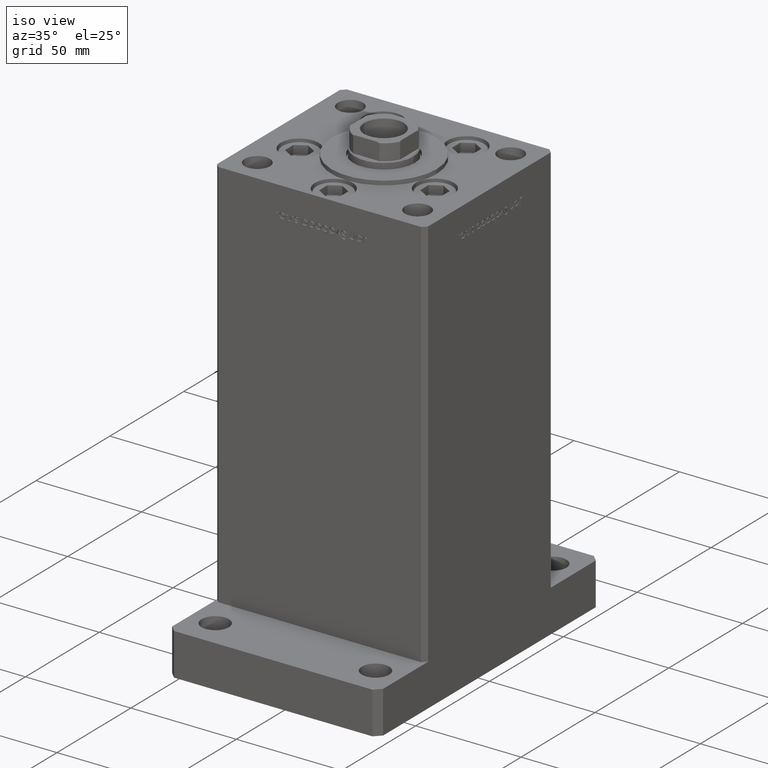
[diagram: clean part render]
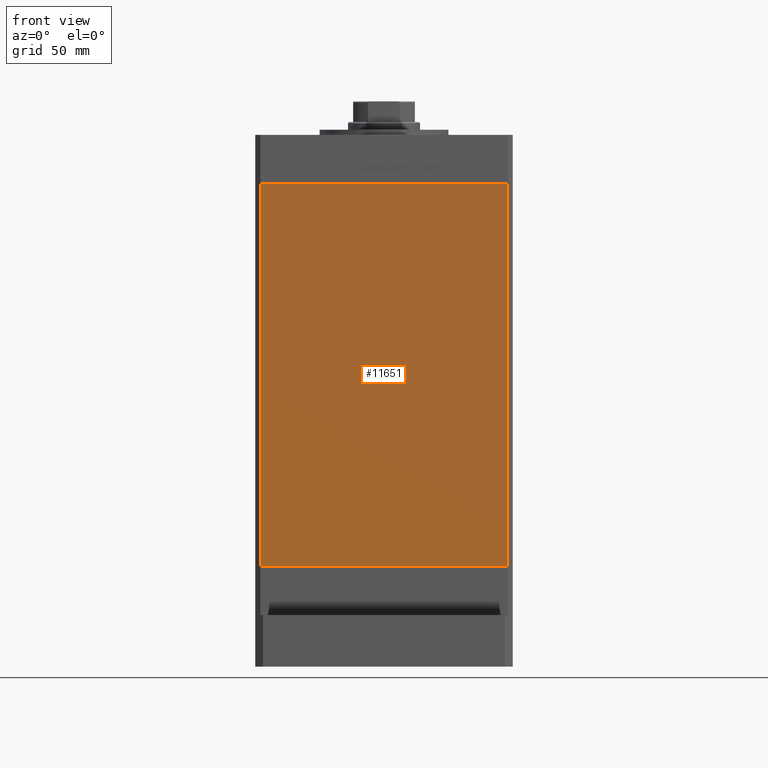
[diagram: tour spotlight — one face highlighted and labeled with its STEP entity id]
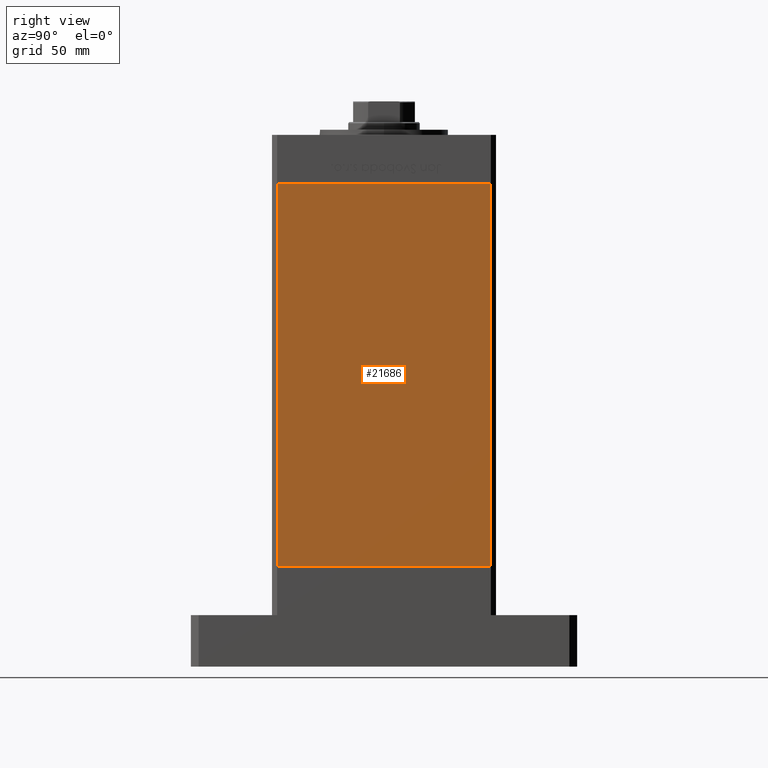
[diagram: tour spotlight — one face highlighted and labeled with its STEP entity id]
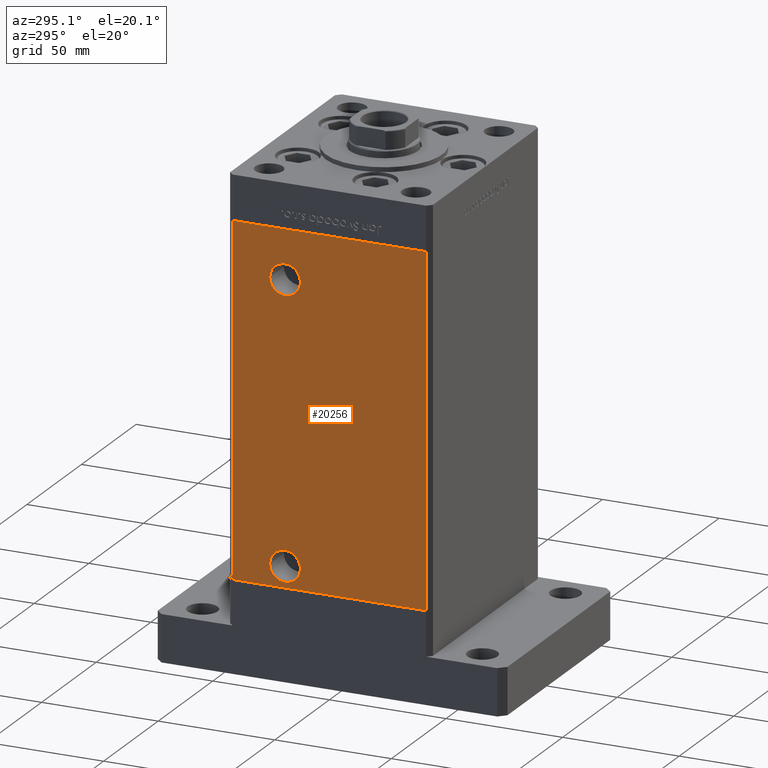
[diagram: tour spotlight — one face highlighted and labeled with its STEP entity id]
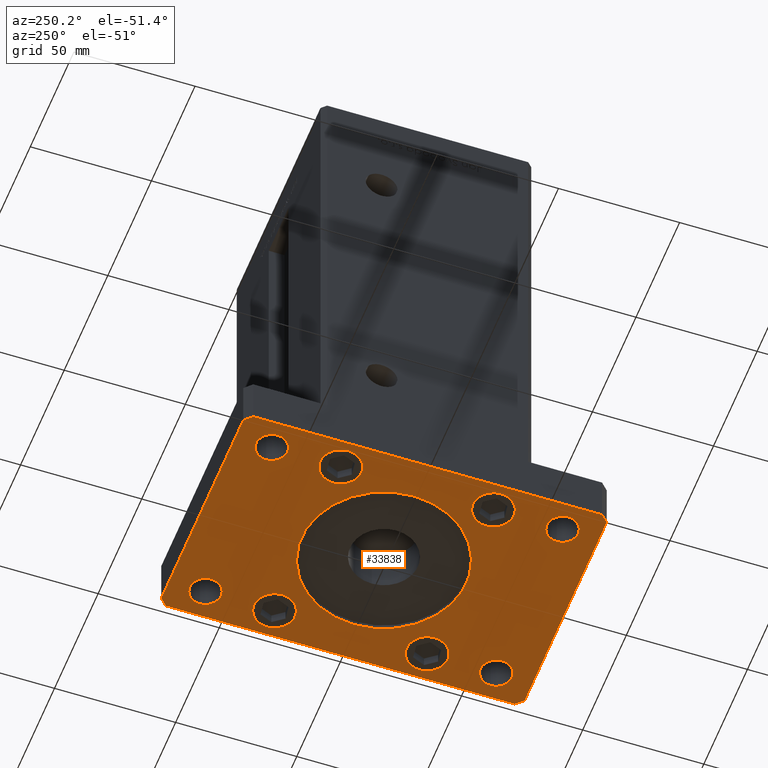
[diagram: tour spotlight — one face highlighted and labeled with its STEP entity id]
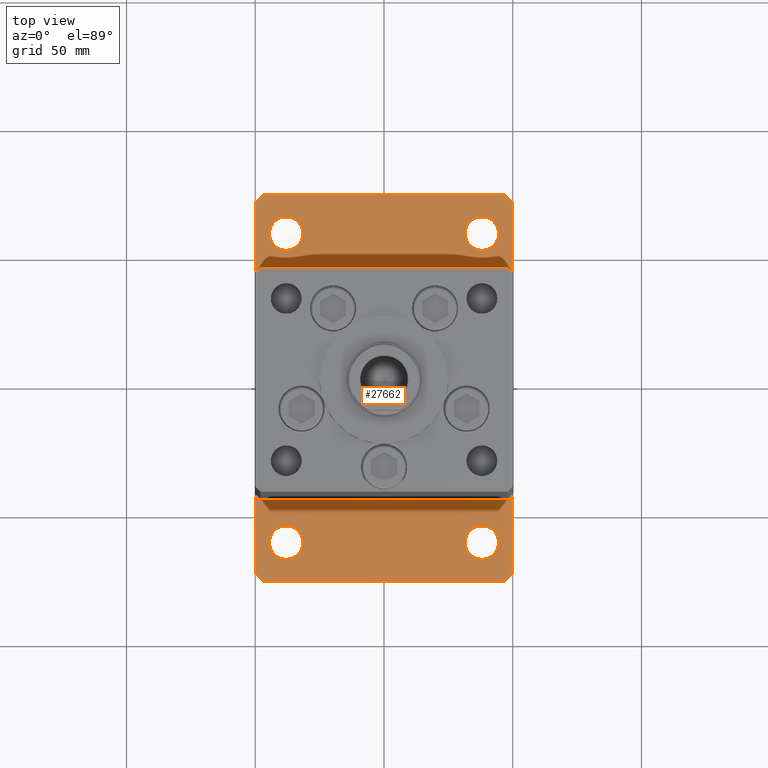
[diagram: tour spotlight — one face highlighted and labeled with its STEP entity id]
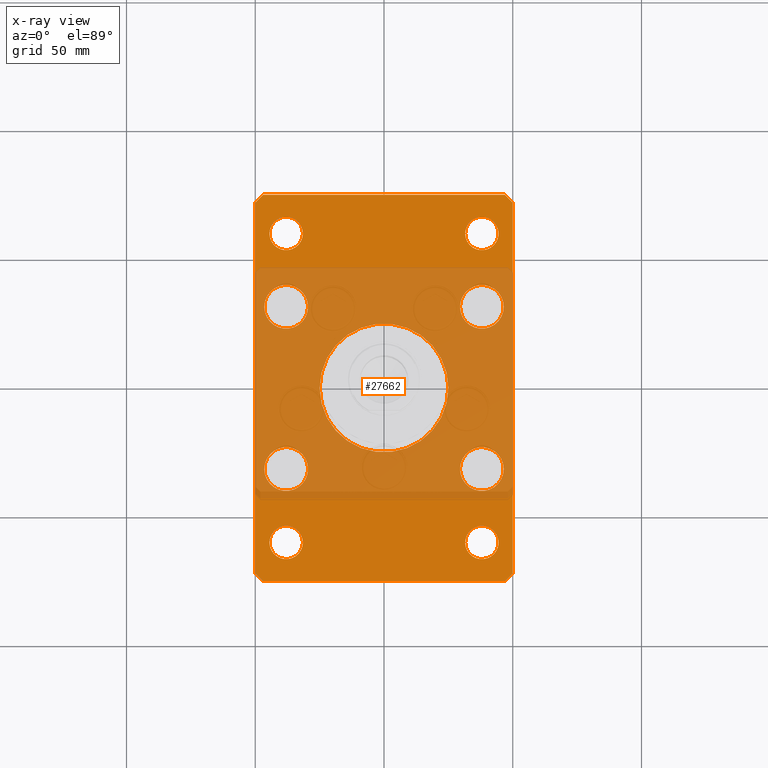
[diagram: x-ray of the same camera — body ghosted, this tour face saturated]
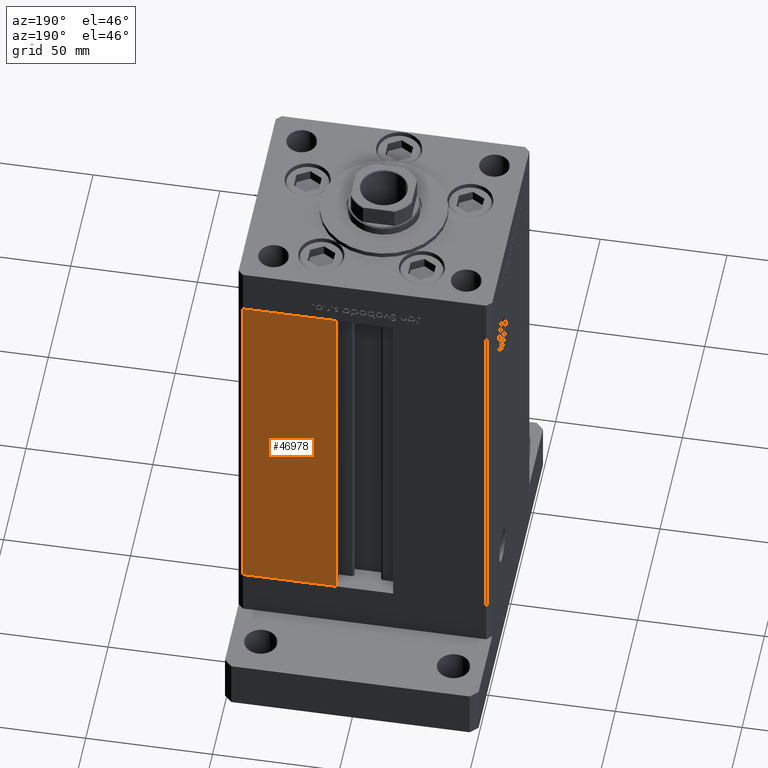
[diagram: tour spotlight — one face highlighted and labeled with its STEP entity id]
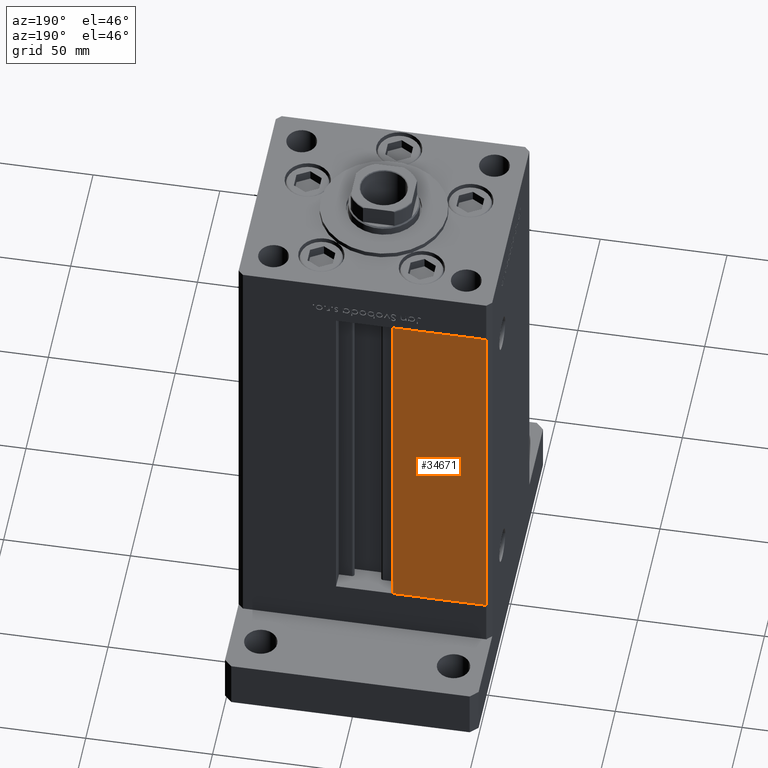
[diagram: tour spotlight — one face highlighted and labeled with its STEP entity id]
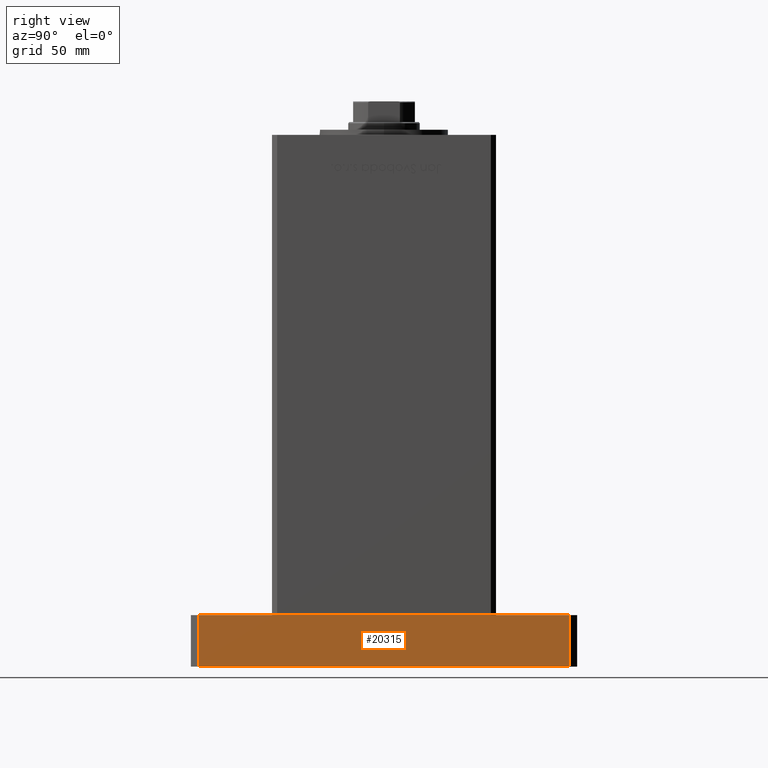
[diagram: tour spotlight — one face highlighted and labeled with its STEP entity id]
A machine part: a face-by-face anatomy tour. The part has 1308 B-rep faces; the first image is the clean iso view, then the 8 largest visible faces are spotlighted one at a time (largest first), each with its STEP entity span.

Face 1 — front view, entity #11651. In plain terms, the highlighted planar face has unit normal (0, 1, 0).
Definition (entity closure, byte-faithful):
#3831 = EDGE_LOOP ( 'NONE', ( #48404, #22271, #38323, #18520 ) ) ;
#5412 = DIRECTION ( 'NONE',  ( 0.000000000000000000, -0.000000000000000000, 1.000000000000000000 ) ) ;
#6146 = VECTOR ( 'NONE', #18828, 1000.000000000000000 ) ;
#7489 = EDGE_CURVE ( 'NONE', #18221, #37527, #24201, .T. ) ;
#9212 = DIRECTION ( 'NONE',  ( 0.000000000000000000, 1.000000000000000000, 0.000000000000000000 ) ) ;
#11651 = ADVANCED_FACE ( 'NONE', ( #46435 ), #21187, .F. ) ;
#11881 = DIRECTION ( 'NONE',  ( -0.000000000000000000, -0.000000000000000000, -1.000000000000000000 ) ) ;
#15781 = CARTESIAN_POINT ( 'NONE',  ( 47.99999999999998579, -43.50000000000000000, 148.5000000000000000 ) ) ;
#15966 = LINE ( 'NONE', #52362, #17251 ) ;
#17251 = VECTOR ( 'NONE', #11881, 1000.000000000000000 ) ;
#17373 = CARTESIAN_POINT ( 'NONE',  ( -47.99999999999998579, -43.50000000000000000, 148.5000000000000000 ) ) ;
#18221 = VERTEX_POINT ( 'NONE', #44728 ) ;
#18423 = VERTEX_POINT ( 'NONE', #27551 ) ;
#18520 = ORIENTED_EDGE ( 'NONE', *, *, #38308, .T. ) ;
#18636 = AXIS2_PLACEMENT_3D ( 'NONE', #17373, #9212, #5412 ) ;
#18828 = DIRECTION ( 'NONE',  ( 1.000000000000000000, 0.000000000000000000, 0.000000000000000000 ) ) ;
#19660 = LINE ( 'NONE', #44356, #6146 ) ;
#21187 = PLANE ( 'NONE',  #18636 ) ;
#22271 = ORIENTED_EDGE ( 'NONE', *, *, #7489, .F. ) ;
#22839 = CARTESIAN_POINT ( 'NONE',  ( 47.99999999999998579, -43.50000000000000000, 0.000000000000000000 ) ) ;
#24201 = LINE ( 'NONE', #15781, #28886 ) ;
#27551 = CARTESIAN_POINT ( 'NONE',  ( -47.99999999999998579, -43.50000000000000000, 148.5000000000000000 ) ) ;
#28093 = DIRECTION ( 'NONE',  ( 1.000000000000000000, 0.000000000000000000, 0.000000000000000000 ) ) ;
#28886 = VECTOR ( 'NONE', #31809, 1000.000000000000000 ) ;
#29424 = CARTESIAN_POINT ( 'NONE',  ( -47.99999999999998579, -43.50000000000000000, 0.000000000000000000 ) ) ;
#31809 = DIRECTION ( 'NONE',  ( -0.000000000000000000, -0.000000000000000000, -1.000000000000000000 ) ) ;
#32961 = LINE ( 'NONE', #36504, #45401 ) ;
#36504 = CARTESIAN_POINT ( 'NONE',  ( -47.99999999999998579, -43.50000000000000000, 0.000000000000000000 ) ) ;
#37527 = VERTEX_POINT ( 'NONE', #22839 ) ;
#38308 = EDGE_CURVE ( 'NONE', #18423, #51602, #15966, .T. ) ;
#38323 = ORIENTED_EDGE ( 'NONE', *, *, #43718, .F. ) ;
#43718 = EDGE_CURVE ( 'NONE', #18423, #18221, #19660, .T. ) ;
#44356 = CARTESIAN_POINT ( 'NONE',  ( -47.99999999999998579, -43.50000000000000000, 148.5000000000000000 ) ) ;
#44728 = CARTESIAN_POINT ( 'NONE',  ( 47.99999999999998579, -43.50000000000000000, 148.5000000000000000 ) ) ;
#45401 = VECTOR ( 'NONE', #28093, 1000.000000000000000 ) ;
#46435 = FACE_OUTER_BOUND ( 'NONE', #3831, .T. ) ;
#48404 = ORIENTED_EDGE ( 'NONE', *, *, #51486, .T. ) ;
#51486 = EDGE_CURVE ( 'NONE', #51602, #37527, #32961, .T. ) ;
#51602 = VERTEX_POINT ( 'NONE', #29424 ) ;
#52362 = CARTESIAN_POINT ( 'NONE',  ( -47.99999999999998579, -43.50000000000000000, 148.5000000000000000 ) ) ;

Face 2 — right view, entity #21686. In plain terms, the highlighted planar face has unit normal (1, -0, 0).
Definition (entity closure, byte-faithful):
#51 = PLANE ( 'NONE',  #24686 ) ;
#3574 = CARTESIAN_POINT ( 'NONE',  ( 50.00000000000001421, 41.49999999999999289, 0.000000000000000000 ) ) ;
#7118 = EDGE_CURVE ( 'NONE', #52754, #39967, #43552, .T. ) ;
#7215 = VECTOR ( 'NONE', #14492, 1000.000000000000000 ) ;
#7774 = DIRECTION ( 'NONE',  ( -0.000000000000000000, -0.000000000000000000, -1.000000000000000000 ) ) ;
#10176 = ORIENTED_EDGE ( 'NONE', *, *, #28508, .F. ) ;
#10516 = DIRECTION ( 'NONE',  ( -0.000000000000000000, -0.000000000000000000, -1.000000000000000000 ) ) ;
#12243 = DIRECTION ( 'NONE',  ( 1.000000000000000000, -3.344045254895050480E-16, 0.000000000000000000 ) ) ;
#12507 = VERTEX_POINT ( 'NONE', #3574 ) ;
#12995 = EDGE_CURVE ( 'NONE', #39967, #21621, #23809, .T. ) ;
#14492 = DIRECTION ( 'NONE',  ( -3.344045254895050973E-16, -1.000000000000000000, 0.000000000000000000 ) ) ;
#15925 = LINE ( 'NONE', #28676, #25083 ) ;
#17820 = EDGE_LOOP ( 'NONE', ( #48304, #10176, #33735, #46217 ) ) ;
#21621 = VERTEX_POINT ( 'NONE', #32357 ) ;
#21686 = ADVANCED_FACE ( 'NONE', ( #29091 ), #51, .T. ) ;
#23463 = CARTESIAN_POINT ( 'NONE',  ( 50.00000000000001421, 41.49999999999999289, 148.5000000000000000 ) ) ;
#23809 = LINE ( 'NONE', #24077, #43686 ) ;
#24077 = CARTESIAN_POINT ( 'NONE',  ( 49.99999999999998579, -41.49999999999999289, 148.5000000000000000 ) ) ;
#24686 = AXIS2_PLACEMENT_3D ( 'NONE', #37755, #12243, #49723 ) ;
#25083 = VECTOR ( 'NONE', #44985, 1000.000000000000000 ) ;
#27902 = CARTESIAN_POINT ( 'NONE',  ( 50.00000000000001421, 41.49999999999999289, 148.5000000000000000 ) ) ;
#28508 = EDGE_CURVE ( 'NONE', #52754, #12507, #40401, .T. ) ;
#28676 = CARTESIAN_POINT ( 'NONE',  ( 50.00000000000001421, 41.49999999999999289, 0.000000000000000000 ) ) ;
#29091 = FACE_OUTER_BOUND ( 'NONE', #17820, .T. ) ;
#32045 = CARTESIAN_POINT ( 'NONE',  ( 50.00000000000001421, 41.49999999999999289, 148.5000000000000000 ) ) ;
#32357 = CARTESIAN_POINT ( 'NONE',  ( 49.99999999999998579, -41.49999999999999289, 0.000000000000000000 ) ) ;
#33735 = ORIENTED_EDGE ( 'NONE', *, *, #7118, .T. ) ;
#34548 = EDGE_CURVE ( 'NONE', #12507, #21621, #15925, .T. ) ;
#37755 = CARTESIAN_POINT ( 'NONE',  ( 50.00000000000001421, 41.49999999999999289, 148.5000000000000000 ) ) ;
#39967 = VERTEX_POINT ( 'NONE', #40959 ) ;
#40401 = LINE ( 'NONE', #27902, #49208 ) ;
#40959 = CARTESIAN_POINT ( 'NONE',  ( 49.99999999999998579, -41.49999999999999289, 148.5000000000000000 ) ) ;
#43552 = LINE ( 'NONE', #23463, #7215 ) ;
#43686 = VECTOR ( 'NONE', #7774, 1000.000000000000000 ) ;
#44985 = DIRECTION ( 'NONE',  ( -3.344045254895050973E-16, -1.000000000000000000, 0.000000000000000000 ) ) ;
#46217 = ORIENTED_EDGE ( 'NONE', *, *, #12995, .T. ) ;
#48304 = ORIENTED_EDGE ( 'NONE', *, *, #34548, .F. ) ;
#49208 = VECTOR ( 'NONE', #10516, 1000.000000000000000 ) ;
#49723 = DIRECTION ( 'NONE',  ( 3.344045254895050480E-16, 1.000000000000000000, 0.000000000000000000 ) ) ;
#52754 = VERTEX_POINT ( 'NONE', #32045 ) ;

Face 3 — auxiliary view, entity #20256. In plain terms, the highlighted planar face has unit normal (1, 0, 0).
Definition (entity closure, byte-faithful):
#388 = LINE ( 'NONE', #38089, #3913 ) ;
#771 = CARTESIAN_POINT ( 'NONE',  ( -50.00000000000000711, 18.99999999999999289, 127.5000000000000000 ) ) ;
#913 = PLANE ( 'NONE',  #2254 ) ;
#1752 = CIRCLE ( 'NONE', #46825, 6.580000000000016058 ) ;
#2207 = ORIENTED_EDGE ( 'NONE', *, *, #23071, .F. ) ;
#2254 = AXIS2_PLACEMENT_3D ( 'NONE', #21283, #28627, #7988 ) ;
#3913 = VECTOR ( 'NONE', #50318, 1000.000000000000000 ) ;
#4102 = CARTESIAN_POINT ( 'NONE',  ( -50.00000000000001421, 41.49999999999999289, 0.000000000000000000 ) ) ;
#4441 = LINE ( 'NONE', #41887, #49809 ) ;
#4531 = CARTESIAN_POINT ( 'NONE',  ( -49.99999999999998579, -41.49999999999999289, 0.000000000000000000 ) ) ;
#7306 = EDGE_CURVE ( 'NONE', #33356, #27696, #46501, .T. ) ;
#7451 = CARTESIAN_POINT ( 'NONE',  ( -50.00000000000000711, 25.58000000000000895, 127.5000000000000000 ) ) ;
#7988 = DIRECTION ( 'NONE',  ( -3.344045254895050480E-16, 1.000000000000000000, 0.000000000000000000 ) ) ;
#8786 = FACE_BOUND ( 'NONE', #30420, .T. ) ;
#9402 = VERTEX_POINT ( 'NONE', #52923 ) ;
#9805 = ORIENTED_EDGE ( 'NONE', *, *, #14825, .F. ) ;
#10801 = VERTEX_POINT ( 'NONE', #32052 ) ;
#11245 = CIRCLE ( 'NONE', #25125, 6.580000000000002736 ) ;
#13799 = DIRECTION ( 'NONE',  ( 0.000000000000000000, -1.000000000000000000, 0.000000000000000000 ) ) ;
#14825 = EDGE_CURVE ( 'NONE', #10801, #25283, #4441, .T. ) ;
#15622 = VECTOR ( 'NONE', #49442, 1000.000000000000000 ) ;
#16055 = ORIENTED_EDGE ( 'NONE', *, *, #7306, .T. ) ;
#18645 = EDGE_CURVE ( 'NONE', #40458, #9402, #22159, .T. ) ;
#20256 = ADVANCED_FACE ( 'NONE', ( #46002, #8786, #38095 ), #913, .F. ) ;
#20654 = LINE ( 'NONE', #4102, #15622 ) ;
#21283 = CARTESIAN_POINT ( 'NONE',  ( -50.00000000000001421, 41.49999999999999289, 148.5000000000000000 ) ) ;
#21780 = DIRECTION ( 'NONE',  ( -0.000000000000000000, -0.000000000000000000, -1.000000000000000000 ) ) ;
#21902 = CARTESIAN_POINT ( 'NONE',  ( -50.00000000000000711, 19.00000000000000000, 9.000000000000000000 ) ) ;
#22159 = CIRCLE ( 'NONE', #37785, 6.580000000000016058 ) ;
#22881 = DIRECTION ( 'NONE',  ( 0.000000000000000000, -1.000000000000000000, 0.000000000000000000 ) ) ;
#23071 = EDGE_CURVE ( 'NONE', #33356, #10801, #388, .T. ) ;
#25125 = AXIS2_PLACEMENT_3D ( 'NONE', #47595, #44340, #22881 ) ;
#25283 = VERTEX_POINT ( 'NONE', #4531 ) ;
#25735 = DIRECTION ( 'NONE',  ( -1.000000000000000000, -2.275047181608927644E-16, 0.000000000000000000 ) ) ;
#27696 = VERTEX_POINT ( 'NONE', #42197 ) ;
#28563 = EDGE_LOOP ( 'NONE', ( #47920, #28585 ) ) ;
#28585 = ORIENTED_EDGE ( 'NONE', *, *, #47209, .F. ) ;
#28627 = DIRECTION ( 'NONE',  ( 1.000000000000000000, 3.344045254895050480E-16, -0.000000000000000000 ) ) ;
#30420 = EDGE_LOOP ( 'NONE', ( #34813, #41727 ) ) ;
#30919 = CARTESIAN_POINT ( 'NONE',  ( -50.00000000000001421, 41.49999999999999289, 148.5000000000000000 ) ) ;
#32052 = CARTESIAN_POINT ( 'NONE',  ( -49.99999999999998579, -41.49999999999999289, 148.5000000000000000 ) ) ;
#33356 = VERTEX_POINT ( 'NONE', #30919 ) ;
#33642 = DIRECTION ( 'NONE',  ( -1.000000000000000000, -2.275047181608927644E-16, 0.000000000000000000 ) ) ;
#34813 = ORIENTED_EDGE ( 'NONE', *, *, #36772, .F. ) ;
#35433 = EDGE_CURVE ( 'NONE', #48136, #50011, #11245, .T. ) ;
#36772 = EDGE_CURVE ( 'NONE', #9402, #40458, #1752, .T. ) ;
#36928 = ORIENTED_EDGE ( 'NONE', *, *, #37646, .T. ) ;
#37385 = CARTESIAN_POINT ( 'NONE',  ( -50.00000000000000711, 25.58000000000000540, 9.000000000000000000 ) ) ;
#37646 = EDGE_CURVE ( 'NONE', #27696, #25283, #20654, .T. ) ;
#37719 = CARTESIAN_POINT ( 'NONE',  ( -50.00000000000000711, 18.99999999999999289, 127.5000000000000000 ) ) ;
#37785 = AXIS2_PLACEMENT_3D ( 'NONE', #771, #25735, #42306 ) ;
#38089 = CARTESIAN_POINT ( 'NONE',  ( -50.00000000000001421, 41.49999999999999289, 148.5000000000000000 ) ) ;
#38095 = FACE_OUTER_BOUND ( 'NONE', #40180, .T. ) ;
#38310 = AXIS2_PLACEMENT_3D ( 'NONE', #21902, #42810, #38452 ) ;
#38452 = DIRECTION ( 'NONE',  ( 0.000000000000000000, -1.000000000000000000, 0.000000000000000000 ) ) ;
#38597 = CARTESIAN_POINT ( 'NONE',  ( -50.00000000000001421, 41.49999999999999289, 148.5000000000000000 ) ) ;
#40069 = CIRCLE ( 'NONE', #38310, 6.580000000000002736 ) ;
#40180 = EDGE_LOOP ( 'NONE', ( #36928, #9805, #2207, #16055 ) ) ;
#40458 = VERTEX_POINT ( 'NONE', #7451 ) ;
#41727 = ORIENTED_EDGE ( 'NONE', *, *, #18645, .F. ) ;
#41887 = CARTESIAN_POINT ( 'NONE',  ( -49.99999999999998579, -41.49999999999999289, 148.5000000000000000 ) ) ;
#42197 = CARTESIAN_POINT ( 'NONE',  ( -50.00000000000001421, 41.49999999999999289, 0.000000000000000000 ) ) ;
#42306 = DIRECTION ( 'NONE',  ( 0.000000000000000000, -1.000000000000000000, 0.000000000000000000 ) ) ;
#42810 = DIRECTION ( 'NONE',  ( -1.000000000000000000, -2.275047181608927644E-16, 0.000000000000000000 ) ) ;
#44340 = DIRECTION ( 'NONE',  ( -1.000000000000000000, -2.275047181608927644E-16, 0.000000000000000000 ) ) ;
#46002 = FACE_BOUND ( 'NONE', #28563, .T. ) ;
#46501 = LINE ( 'NONE', #38597, #51430 ) ;
#46825 = AXIS2_PLACEMENT_3D ( 'NONE', #37719, #33642, #13799 ) ;
#47209 = EDGE_CURVE ( 'NONE', #50011, #48136, #40069, .T. ) ;
#47595 = CARTESIAN_POINT ( 'NONE',  ( -50.00000000000000711, 19.00000000000000000, 9.000000000000000000 ) ) ;
#47920 = ORIENTED_EDGE ( 'NONE', *, *, #35433, .F. ) ;
#48136 = VERTEX_POINT ( 'NONE', #49319 ) ;
#49319 = CARTESIAN_POINT ( 'NONE',  ( -50.00000000000000711, 12.41999999999999638, 9.000000000000000000 ) ) ;
#49442 = DIRECTION ( 'NONE',  ( 3.344045254895050973E-16, -1.000000000000000000, 0.000000000000000000 ) ) ;
#49809 = VECTOR ( 'NONE', #21780, 1000.000000000000000 ) ;
#50011 = VERTEX_POINT ( 'NONE', #37385 ) ;
#50318 = DIRECTION ( 'NONE',  ( 3.344045254895050973E-16, -1.000000000000000000, 0.000000000000000000 ) ) ;
#50556 = DIRECTION ( 'NONE',  ( -0.000000000000000000, -0.000000000000000000, -1.000000000000000000 ) ) ;
#51430 = VECTOR ( 'NONE', #50556, 1000.000000000000000 ) ;
#52923 = CARTESIAN_POINT ( 'NONE',  ( -50.00000000000000711, 12.41999999999997684, 127.5000000000000000 ) ) ;

Face 4 — auxiliary view, entity #33838. In plain terms, the highlighted planar face has unit normal (0, 0, 1).
Definition (entity closure, byte-faithful):
#199 = ORIENTED_EDGE ( 'NONE', *, *, #6172, .T. ) ;
#296 = CARTESIAN_POINT ( 'NONE',  ( -31.49999999999999289, 59.99999999999999289, 0.000000000000000000 ) ) ;
#374 = DIRECTION ( 'NONE',  ( 1.000000000000000000, 0.000000000000000000, -0.000000000000000000 ) ) ;
#600 = VERTEX_POINT ( 'NONE', #47273 ) ;
#726 = ORIENTED_EDGE ( 'NONE', *, *, #15997, .F. ) ;
#1020 = CARTESIAN_POINT ( 'NONE',  ( -44.49999999999999289, 59.99999999999999289, 0.000000000000000000 ) ) ;
#1158 = DIRECTION ( 'NONE',  ( 0.000000000000000000, 0.000000000000000000, 1.000000000000000000 ) ) ;
#1174 = VERTEX_POINT ( 'NONE', #43271 ) ;
#1484 = CIRCLE ( 'NONE', #18845, 8.500000000000000000 ) ;
#1734 = CARTESIAN_POINT ( 'NONE',  ( 31.50000000000000000, 59.99999999999998579, 0.000000000000000000 ) ) ;
#2456 = LINE ( 'NONE', #13852, #42989 ) ;
#2869 = ORIENTED_EDGE ( 'NONE', *, *, #39912, .F. ) ;
#3019 = DIRECTION ( 'NONE',  ( 1.000000000000000000, 0.000000000000000000, 0.000000000000000000 ) ) ;
#3424 = VECTOR ( 'NONE', #14907, 1000.000000000000114 ) ;
#3554 = DIRECTION ( 'NONE',  ( 1.000000000000000000, 0.000000000000000000, 0.000000000000000000 ) ) ;
#3682 = EDGE_CURVE ( 'NONE', #27190, #50849, #40046, .T. ) ;
#3688 = AXIS2_PLACEMENT_3D ( 'NONE', #17446, #45721, #4703 ) ;
#4447 = FACE_BOUND ( 'NONE', #30125, .T. ) ;
#4695 = CIRCLE ( 'NONE', #24613, 8.500000000000000000 ) ;
#4703 = DIRECTION ( 'NONE',  ( 1.000000000000000000, 0.000000000000000000, 0.000000000000000000 ) ) ;
#4970 = FACE_BOUND ( 'NONE', #22877, .T. ) ;
#5772 = EDGE_CURVE ( 'NONE', #7166, #22286, #44466, .T. ) ;
#5813 = VERTEX_POINT ( 'NONE', #46604 ) ;
#5902 = CARTESIAN_POINT ( 'NONE',  ( -37.99999999999997868, -60.00000000000000711, 0.000000000000000000 ) ) ;
#6172 = EDGE_CURVE ( 'NONE', #43577, #44859, #12368, .T. ) ;
#6280 = AXIS2_PLACEMENT_3D ( 'NONE', #27972, #52696, #3019 ) ;
#6905 = ORIENTED_EDGE ( 'NONE', *, *, #47637, .T. ) ;
#6984 = DIRECTION ( 'NONE',  ( 1.000000000000000000, 0.000000000000000000, 0.000000000000000000 ) ) ;
#7166 = VERTEX_POINT ( 'NONE', #22642 ) ;
#7294 = CIRCLE ( 'NONE', #28963, 6.499999999999999112 ) ;
#7508 = LINE ( 'NONE', #28133, #22462 ) ;
#7545 = EDGE_CURVE ( 'NONE', #17797, #600, #10644, .T. ) ;
#7674 = ORIENTED_EDGE ( 'NONE', *, *, #52505, .T. ) ;
#8205 = VERTEX_POINT ( 'NONE', #35062 ) ;
#8391 = EDGE_CURVE ( 'NONE', #40389, #35651, #40199, .T. ) ;
#8474 = VERTEX_POINT ( 'NONE', #27398 ) ;
#8694 = DIRECTION ( 'NONE',  ( 0.000000000000000000, 0.000000000000000000, 1.000000000000000000 ) ) ;
#8707 = EDGE_LOOP ( 'NONE', ( #41075, #45536 ) ) ;
#8721 = EDGE_CURVE ( 'NONE', #46403, #47210, #47125, .T. ) ;
#8918 = DIRECTION ( 'NONE',  ( 1.927470528863118802E-16, -1.000000000000000000, 0.000000000000000000 ) ) ;
#9028 = CIRCLE ( 'NONE', #46330, 34.00000000000000000 ) ;
#9300 = EDGE_CURVE ( 'NONE', #28430, #1174, #9028, .T. ) ;
#9394 = CIRCLE ( 'NONE', #45830, 34.00000000000000000 ) ;
#9718 = DIRECTION ( 'NONE',  ( 1.000000000000000000, 0.000000000000000000, 0.000000000000000000 ) ) ;
#9743 = VECTOR ( 'NONE', #35822, 999.9999999999998863 ) ;
#9944 = EDGE_CURVE ( 'NONE', #47210, #46403, #7294, .T. ) ;
#10084 = CARTESIAN_POINT ( 'NONE',  ( 47.00000000000002132, 75.00000000000002842, 0.000000000000000000 ) ) ;
#10644 = CIRCLE ( 'NONE', #43611, 6.499999999999999112 ) ;
#11165 = AXIS2_PLACEMENT_3D ( 'NONE', #36860, #11345, #15164 ) ;
#11345 = DIRECTION ( 'NONE',  ( 0.000000000000000000, 0.000000000000000000, 1.000000000000000000 ) ) ;
#11630 = CARTESIAN_POINT ( 'NONE',  ( 50.00000000000000000, 72.00000000000001421, 0.000000000000000000 ) ) ;
#11997 = EDGE_LOOP ( 'NONE', ( #20468, #20238 ) ) ;
#12046 = DIRECTION ( 'NONE',  ( 0.7071067811865459074, 0.7071067811865491270, 0.000000000000000000 ) ) ;
#12186 = VERTEX_POINT ( 'NONE', #24597 ) ;
#12242 = DIRECTION ( 'NONE',  ( 0.000000000000000000, 0.000000000000000000, -1.000000000000000000 ) ) ;
#12368 = CIRCLE ( 'NONE', #6280, 6.499999999999999112 ) ;
#12806 = VECTOR ( 'NONE', #8918, 1000.000000000000000 ) ;
#12908 = AXIS2_PLACEMENT_3D ( 'NONE', #45982, #1158, #374 ) ;
#13010 = EDGE_LOOP ( 'NONE', ( #30494, #2869, #47109, #21573, #41723, #726, #33815, #52861 ) ) ;
#13100 = FACE_BOUND ( 'NONE', #22820, .T. ) ;
#13177 = VERTEX_POINT ( 'NONE', #25228 ) ;
#13574 = DIRECTION ( 'NONE',  ( 0.000000000000000000, 0.000000000000000000, 1.000000000000000000 ) ) ;
#13798 = DIRECTION ( 'NONE',  ( 0.000000000000000000, 0.000000000000000000, 1.000000000000000000 ) ) ;
#13852 = CARTESIAN_POINT ( 'NONE',  ( -47.00000000000000000, -75.00000000000000000, 0.000000000000000000 ) ) ;
#14148 = EDGE_CURVE ( 'NONE', #600, #17797, #21130, .T. ) ;
#14158 = LINE ( 'NONE', #10084, #43636 ) ;
#14230 = DIRECTION ( 'NONE',  ( 1.000000000000000000, 0.000000000000000000, 0.000000000000000000 ) ) ;
#14516 = ORIENTED_EDGE ( 'NONE', *, *, #39786, .T. ) ;
#14907 = DIRECTION ( 'NONE',  ( 0.7071067811865474617, -0.7071067811865474617, 0.000000000000000000 ) ) ;
#15031 = CARTESIAN_POINT ( 'NONE',  ( 0.000000000000000000, 0.000000000000000000, 0.000000000000000000 ) ) ;
#15164 = DIRECTION ( 'NONE',  ( 1.000000000000000000, 0.000000000000000000, 0.000000000000000000 ) ) ;
#15740 = AXIS2_PLACEMENT_3D ( 'NONE', #40812, #44090, #43820 ) ;
#15997 = EDGE_CURVE ( 'NONE', #31628, #12186, #23867, .T. ) ;
#16897 = DIRECTION ( 'NONE',  ( 1.000000000000000000, 0.000000000000000000, 0.000000000000000000 ) ) ;
#17148 = CARTESIAN_POINT ( 'NONE',  ( 29.49999999999999645, 31.49999999999999289, 0.000000000000000000 ) ) ;
#17175 = DIRECTION ( 'NONE',  ( 0.000000000000000000, 0.000000000000000000, -1.000000000000000000 ) ) ;
#17188 = FACE_BOUND ( 'NONE', #25822, .T. ) ;
#17446 = CARTESIAN_POINT ( 'NONE',  ( -37.99999999999999289, 59.99999999999999289, 0.000000000000000000 ) ) ;
#17558 = CARTESIAN_POINT ( 'NONE',  ( 31.49999999999997868, -60.00000000000000711, 0.000000000000000000 ) ) ;
#17712 = FACE_BOUND ( 'NONE', #8707, .T. ) ;
#17755 = CIRCLE ( 'NONE', #43783, 8.499999999999992895 ) ;
#17797 = VERTEX_POINT ( 'NONE', #39083 ) ;
#17827 = CARTESIAN_POINT ( 'NONE',  ( 44.50000000000000000, 59.99999999999998579, 0.000000000000000000 ) ) ;
#18044 = CARTESIAN_POINT ( 'NONE',  ( 46.49999999999998579, 31.49999999999999289, 0.000000000000000000 ) ) ;
#18109 = DIRECTION ( 'NONE',  ( 1.000000000000000000, 0.000000000000000000, 0.000000000000000000 ) ) ;
#18574 = CARTESIAN_POINT ( 'NONE',  ( 38.00000000000000000, 59.99999999999998579, 0.000000000000000000 ) ) ;
#18845 = AXIS2_PLACEMENT_3D ( 'NONE', #38506, #13798, #9718 ) ;
#19741 = CARTESIAN_POINT ( 'NONE',  ( -38.00000000000000711, 31.50000000000000000, 0.000000000000000000 ) ) ;
#20112 = DIRECTION ( 'NONE',  ( 0.000000000000000000, 0.000000000000000000, 1.000000000000000000 ) ) ;
#20211 = ORIENTED_EDGE ( 'NONE', *, *, #8391, .T. ) ;
#20238 = ORIENTED_EDGE ( 'NONE', *, *, #45556, .T. ) ;
#20386 = CARTESIAN_POINT ( 'NONE',  ( -37.99999999999997868, -60.00000000000000711, 0.000000000000000000 ) ) ;
#20392 = CARTESIAN_POINT ( 'NONE',  ( -46.50000000000000711, 31.50000000000000000, 0.000000000000000000 ) ) ;
#20468 = ORIENTED_EDGE ( 'NONE', *, *, #28449, .T. ) ;
#20799 = EDGE_CURVE ( 'NONE', #27874, #13177, #50726, .T. ) ;
#21130 = CIRCLE ( 'NONE', #24619, 6.499999999999999112 ) ;
#21495 = DIRECTION ( 'NONE',  ( 0.000000000000000000, 0.000000000000000000, 1.000000000000000000 ) ) ;
#21573 = ORIENTED_EDGE ( 'NONE', *, *, #48879, .F. ) ;
#22286 = VERTEX_POINT ( 'NONE', #50058 ) ;
#22462 = VECTOR ( 'NONE', #24073, 1000.000000000000000 ) ;
#22642 = CARTESIAN_POINT ( 'NONE',  ( -29.50000000000000711, -31.50000000000000000, 0.000000000000000000 ) ) ;
#22729 = DIRECTION ( 'NONE',  ( 0.000000000000000000, 0.000000000000000000, 1.000000000000000000 ) ) ;
#22820 = EDGE_LOOP ( 'NONE', ( #36306, #25637 ) ) ;
#22871 = EDGE_CURVE ( 'NONE', #35651, #40389, #17755, .T. ) ;
#22877 = EDGE_LOOP ( 'NONE', ( #25996, #53608 ) ) ;
#23867 = LINE ( 'NONE', #11630, #40316 ) ;
#24071 = DIRECTION ( 'NONE',  ( 0.000000000000000000, 0.000000000000000000, 1.000000000000000000 ) ) ;
#24073 = DIRECTION ( 'NONE',  ( 0.000000000000000000, 1.000000000000000000, 0.000000000000000000 ) ) ;
#24467 = DIRECTION ( 'NONE',  ( 1.000000000000000000, 0.000000000000000000, 0.000000000000000000 ) ) ;
#24597 = CARTESIAN_POINT ( 'NONE',  ( 47.00000000000002132, 75.00000000000002842, 0.000000000000000000 ) ) ;
#24613 = AXIS2_PLACEMENT_3D ( 'NONE', #42934, #21495, #16897 ) ;
#24619 = AXIS2_PLACEMENT_3D ( 'NONE', #20386, #20112, #3554 ) ;
#24741 = DIRECTION ( 'NONE',  ( 1.000000000000000000, 0.000000000000000000, 0.000000000000000000 ) ) ;
#24751 = DIRECTION ( 'NONE',  ( -1.000000000000000000, 0.000000000000000000, 0.000000000000000000 ) ) ;
#24833 = EDGE_CURVE ( 'NONE', #41340, #38510, #2456, .T. ) ;
#25165 = DIRECTION ( 'NONE',  ( 1.000000000000000000, 0.000000000000000000, 0.000000000000000000 ) ) ;
#25228 = CARTESIAN_POINT ( 'NONE',  ( -49.99999999999998579, -72.00000000000001421, 0.000000000000000000 ) ) ;
#25637 = ORIENTED_EDGE ( 'NONE', *, *, #9944, .T. ) ;
#25822 = EDGE_LOOP ( 'NONE', ( #48739, #20211 ) ) ;
#25996 = ORIENTED_EDGE ( 'NONE', *, *, #14148, .T. ) ;
#26207 = CIRCLE ( 'NONE', #44455, 8.499999999999992895 ) ;
#27065 = CARTESIAN_POINT ( 'NONE',  ( 37.99999999999999289, 31.49999999999999289, 0.000000000000000000 ) ) ;
#27190 = VERTEX_POINT ( 'NONE', #39769 ) ;
#27398 = CARTESIAN_POINT ( 'NONE',  ( -29.50000000000000711, 31.50000000000000000, 0.000000000000000000 ) ) ;
#27874 = VERTEX_POINT ( 'NONE', #50870 ) ;
#27972 = CARTESIAN_POINT ( 'NONE',  ( -37.99999999999999289, 59.99999999999999289, 0.000000000000000000 ) ) ;
#27992 = AXIS2_PLACEMENT_3D ( 'NONE', #37648, #29242, #25165 ) ;
#28078 = LINE ( 'NONE', #53061, #29671 ) ;
#28133 = CARTESIAN_POINT ( 'NONE',  ( 50.00000000000000000, -71.99999999999988631, 0.000000000000000000 ) ) ;
#28134 = CARTESIAN_POINT ( 'NONE',  ( 50.00000000000000000, 72.00000000000001421, 0.000000000000000000 ) ) ;
#28430 = VERTEX_POINT ( 'NONE', #39043 ) ;
#28449 = EDGE_CURVE ( 'NONE', #37659, #8474, #1484, .T. ) ;
#28963 = AXIS2_PLACEMENT_3D ( 'NONE', #47513, #35011, #34477 ) ;
#29242 = DIRECTION ( 'NONE',  ( 0.000000000000000000, 0.000000000000000000, 1.000000000000000000 ) ) ;
#29671 = VECTOR ( 'NONE', #12046, 1000.000000000000114 ) ;
#29754 = AXIS2_PLACEMENT_3D ( 'NONE', #46443, #8694, #24467 ) ;
#30125 = EDGE_LOOP ( 'NONE', ( #199, #6905 ) ) ;
#30494 = ORIENTED_EDGE ( 'NONE', *, *, #24833, .F. ) ;
#30671 = EDGE_LOOP ( 'NONE', ( #31905, #31082 ) ) ;
#30735 = ORIENTED_EDGE ( 'NONE', *, *, #5772, .T. ) ;
#31082 = ORIENTED_EDGE ( 'NONE', *, *, #33093, .F. ) ;
#31488 = DIRECTION ( 'NONE',  ( 1.000000000000000000, 1.181088324069315250E-15, 0.000000000000000000 ) ) ;
#31628 = VERTEX_POINT ( 'NONE', #28134 ) ;
#31763 = EDGE_LOOP ( 'NONE', ( #14516, #38691 ) ) ;
#31905 = ORIENTED_EDGE ( 'NONE', *, *, #9300, .F. ) ;
#33093 = EDGE_CURVE ( 'NONE', #1174, #28430, #9394, .T. ) ;
#33209 = PLANE ( 'NONE',  #12908 ) ;
#33432 = EDGE_LOOP ( 'NONE', ( #7674, #30735 ) ) ;
#33736 = FACE_OUTER_BOUND ( 'NONE', #13010, .T. ) ;
#33815 = ORIENTED_EDGE ( 'NONE', *, *, #39419, .F. ) ;
#33838 = ADVANCED_FACE ( 'NONE', ( #38078, #33736, #4970, #13100, #4447, #42427, #17712, #17188, #37816, #49784 ), #33209, .F. ) ;
#34160 = VERTEX_POINT ( 'NONE', #36616 ) ;
#34477 = DIRECTION ( 'NONE',  ( 1.000000000000000000, 0.000000000000000000, 0.000000000000000000 ) ) ;
#34889 = CIRCLE ( 'NONE', #3688, 6.499999999999999112 ) ;
#35011 = DIRECTION ( 'NONE',  ( 0.000000000000000000, 0.000000000000000000, 1.000000000000000000 ) ) ;
#35062 = CARTESIAN_POINT ( 'NONE',  ( -47.00000000000002842, 75.00000000000002842, 0.000000000000000000 ) ) ;
#35651 = VERTEX_POINT ( 'NONE', #17148 ) ;
#35687 = AXIS2_PLACEMENT_3D ( 'NONE', #19741, #24071, #40625 ) ;
#35822 = DIRECTION ( 'NONE',  ( -0.7071067811865425767, -0.7071067811865525687, 0.000000000000000000 ) ) ;
#35850 = CARTESIAN_POINT ( 'NONE',  ( 29.49999999999999645, -31.49999999999999289, 0.000000000000000000 ) ) ;
#36306 = ORIENTED_EDGE ( 'NONE', *, *, #8721, .T. ) ;
#36502 = VERTEX_POINT ( 'NONE', #35850 ) ;
#36616 = CARTESIAN_POINT ( 'NONE',  ( 46.49999999999998579, -31.49999999999999289, 0.000000000000000000 ) ) ;
#36860 = CARTESIAN_POINT ( 'NONE',  ( 37.99999999999999289, -31.49999999999999289, 0.000000000000000000 ) ) ;
#37492 = CARTESIAN_POINT ( 'NONE',  ( 0.000000000000000000, 0.000000000000000000, 0.000000000000000000 ) ) ;
#37648 = CARTESIAN_POINT ( 'NONE',  ( -38.00000000000000711, -31.50000000000000000, 0.000000000000000000 ) ) ;
#37659 = VERTEX_POINT ( 'NONE', #20392 ) ;
#37816 = FACE_BOUND ( 'NONE', #11997, .T. ) ;
#38049 = CIRCLE ( 'NONE', #11165, 8.499999999999992895 ) ;
#38078 = FACE_BOUND ( 'NONE', #30671, .T. ) ;
#38321 = EDGE_CURVE ( 'NONE', #36502, #34160, #38049, .T. ) ;
#38506 = CARTESIAN_POINT ( 'NONE',  ( -38.00000000000000711, 31.50000000000000000, 0.000000000000000000 ) ) ;
#38510 = VERTEX_POINT ( 'NONE', #39191 ) ;
#38540 = CARTESIAN_POINT ( 'NONE',  ( 37.99999999999997868, -60.00000000000000711, 0.000000000000000000 ) ) ;
#38691 = ORIENTED_EDGE ( 'NONE', *, *, #3682, .T. ) ;
#38809 = DIRECTION ( 'NONE',  ( 1.000000000000000000, 0.000000000000000000, 0.000000000000000000 ) ) ;
#39043 = CARTESIAN_POINT ( 'NONE',  ( -34.00000000000000000, 0.000000000000000000, 0.000000000000000000 ) ) ;
#39083 = CARTESIAN_POINT ( 'NONE',  ( -31.49999999999997868, -60.00000000000000711, 0.000000000000000000 ) ) ;
#39191 = CARTESIAN_POINT ( 'NONE',  ( 47.00000000000001421, -74.99999999999988631, 0.000000000000000000 ) ) ;
#39419 = EDGE_CURVE ( 'NONE', #5813, #31628, #7508, .T. ) ;
#39566 = DIRECTION ( 'NONE',  ( 0.000000000000000000, 0.000000000000000000, 1.000000000000000000 ) ) ;
#39769 = CARTESIAN_POINT ( 'NONE',  ( 44.49999999999997868, -60.00000000000000711, 0.000000000000000000 ) ) ;
#39786 = EDGE_CURVE ( 'NONE', #50849, #27190, #47640, .T. ) ;
#39912 = EDGE_CURVE ( 'NONE', #13177, #41340, #43430, .T. ) ;
#40046 = CIRCLE ( 'NONE', #15740, 6.499999999999999112 ) ;
#40199 = CIRCLE ( 'NONE', #29754, 8.499999999999992895 ) ;
#40316 = VECTOR ( 'NONE', #40951, 999.9999999999998863 ) ;
#40389 = VERTEX_POINT ( 'NONE', #18044 ) ;
#40625 = DIRECTION ( 'NONE',  ( 1.000000000000000000, 0.000000000000000000, 0.000000000000000000 ) ) ;
#40698 = AXIS2_PLACEMENT_3D ( 'NONE', #38540, #13574, #38809 ) ;
#40812 = CARTESIAN_POINT ( 'NONE',  ( 37.99999999999997868, -60.00000000000000711, 0.000000000000000000 ) ) ;
#40951 = DIRECTION ( 'NONE',  ( -0.7071067811865435759, 0.7071067811865515695, 0.000000000000000000 ) ) ;
#41075 = ORIENTED_EDGE ( 'NONE', *, *, #38321, .T. ) ;
#41340 = VERTEX_POINT ( 'NONE', #46870 ) ;
#41723 = ORIENTED_EDGE ( 'NONE', *, *, #51427, .F. ) ;
#42361 = DIRECTION ( 'NONE',  ( 0.000000000000000000, 0.000000000000000000, 1.000000000000000000 ) ) ;
#42427 = FACE_BOUND ( 'NONE', #33432, .T. ) ;
#42852 = CARTESIAN_POINT ( 'NONE',  ( -50.00000000000001421, 72.00000000000000000, 0.000000000000000000 ) ) ;
#42934 = CARTESIAN_POINT ( 'NONE',  ( -38.00000000000000711, -31.50000000000000000, 0.000000000000000000 ) ) ;
#42989 = VECTOR ( 'NONE', #31488, 1000.000000000000000 ) ;
#43219 = DIRECTION ( 'NONE',  ( -1.000000000000000000, 0.000000000000000000, 0.000000000000000000 ) ) ;
#43271 = CARTESIAN_POINT ( 'NONE',  ( 34.00000000000000000, 4.163799117101000559E-15, 0.000000000000000000 ) ) ;
#43430 = LINE ( 'NONE', #47503, #3424 ) ;
#43577 = VERTEX_POINT ( 'NONE', #1020 ) ;
#43611 = AXIS2_PLACEMENT_3D ( 'NONE', #5902, #39566, #6984 ) ;
#43636 = VECTOR ( 'NONE', #43219, 1000.000000000000000 ) ;
#43783 = AXIS2_PLACEMENT_3D ( 'NONE', #27065, #22729, #18109 ) ;
#43820 = DIRECTION ( 'NONE',  ( 1.000000000000000000, 0.000000000000000000, 0.000000000000000000 ) ) ;
#44090 = DIRECTION ( 'NONE',  ( 0.000000000000000000, 0.000000000000000000, 1.000000000000000000 ) ) ;
#44251 = LINE ( 'NONE', #53191, #9743 ) ;
#44455 = AXIS2_PLACEMENT_3D ( 'NONE', #50241, #42361, #24741 ) ;
#44466 = CIRCLE ( 'NONE', #27992, 8.500000000000000000 ) ;
#44859 = VERTEX_POINT ( 'NONE', #296 ) ;
#45536 = ORIENTED_EDGE ( 'NONE', *, *, #47936, .T. ) ;
#45556 = EDGE_CURVE ( 'NONE', #8474, #37659, #48700, .T. ) ;
#45721 = DIRECTION ( 'NONE',  ( 0.000000000000000000, 0.000000000000000000, 1.000000000000000000 ) ) ;
#45830 = AXIS2_PLACEMENT_3D ( 'NONE', #15031, #17175, #45974 ) ;
#45974 = DIRECTION ( 'NONE',  ( -1.000000000000000000, 0.000000000000000000, 0.000000000000000000 ) ) ;
#45982 = CARTESIAN_POINT ( 'NONE',  ( 0.000000000000000000, 0.000000000000000000, 0.000000000000000000 ) ) ;
#46255 = AXIS2_PLACEMENT_3D ( 'NONE', #18574, #51431, #14230 ) ;
#46330 = AXIS2_PLACEMENT_3D ( 'NONE', #37492, #12242, #24751 ) ;
#46403 = VERTEX_POINT ( 'NONE', #1734 ) ;
#46443 = CARTESIAN_POINT ( 'NONE',  ( 37.99999999999999289, 31.49999999999999289, 0.000000000000000000 ) ) ;
#46604 = CARTESIAN_POINT ( 'NONE',  ( 50.00000000000000000, -71.99999999999988631, 0.000000000000000000 ) ) ;
#46870 = CARTESIAN_POINT ( 'NONE',  ( -47.00000000000000000, -75.00000000000000000, 0.000000000000000000 ) ) ;
#47109 = ORIENTED_EDGE ( 'NONE', *, *, #20799, .F. ) ;
#47125 = CIRCLE ( 'NONE', #46255, 6.499999999999999112 ) ;
#47210 = VERTEX_POINT ( 'NONE', #17827 ) ;
#47273 = CARTESIAN_POINT ( 'NONE',  ( -44.49999999999997868, -60.00000000000000711, 0.000000000000000000 ) ) ;
#47503 = CARTESIAN_POINT ( 'NONE',  ( -49.99999999999998579, -72.00000000000001421, 0.000000000000000000 ) ) ;
#47513 = CARTESIAN_POINT ( 'NONE',  ( 38.00000000000000000, 59.99999999999998579, 0.000000000000000000 ) ) ;
#47637 = EDGE_CURVE ( 'NONE', #44859, #43577, #34889, .T. ) ;
#47640 = CIRCLE ( 'NONE', #40698, 6.499999999999999112 ) ;
#47936 = EDGE_CURVE ( 'NONE', #34160, #36502, #26207, .T. ) ;
#48461 = EDGE_CURVE ( 'NONE', #38510, #5813, #28078, .T. ) ;
#48700 = CIRCLE ( 'NONE', #35687, 8.500000000000000000 ) ;
#48739 = ORIENTED_EDGE ( 'NONE', *, *, #22871, .T. ) ;
#48879 = EDGE_CURVE ( 'NONE', #8205, #27874, #44251, .T. ) ;
#49784 = FACE_BOUND ( 'NONE', #31763, .T. ) ;
#50058 = CARTESIAN_POINT ( 'NONE',  ( -46.50000000000000711, -31.50000000000000000, 0.000000000000000000 ) ) ;
#50241 = CARTESIAN_POINT ( 'NONE',  ( 37.99999999999999289, -31.49999999999999289, 0.000000000000000000 ) ) ;
#50726 = LINE ( 'NONE', #42852, #12806 ) ;
#50849 = VERTEX_POINT ( 'NONE', #17558 ) ;
#50870 = CARTESIAN_POINT ( 'NONE',  ( -50.00000000000001421, 72.00000000000000000, 0.000000000000000000 ) ) ;
#51427 = EDGE_CURVE ( 'NONE', #12186, #8205, #14158, .T. ) ;
#51431 = DIRECTION ( 'NONE',  ( 0.000000000000000000, 0.000000000000000000, 1.000000000000000000 ) ) ;
#52505 = EDGE_CURVE ( 'NONE', #22286, #7166, #4695, .T. ) ;
#52696 = DIRECTION ( 'NONE',  ( 0.000000000000000000, 0.000000000000000000, 1.000000000000000000 ) ) ;
#52861 = ORIENTED_EDGE ( 'NONE', *, *, #48461, .F. ) ;
#53061 = CARTESIAN_POINT ( 'NONE',  ( 47.00000000000001421, -74.99999999999988631, 0.000000000000000000 ) ) ;
#53191 = CARTESIAN_POINT ( 'NONE',  ( -47.00000000000002842, 75.00000000000002842, 0.000000000000000000 ) ) ;
#53608 = ORIENTED_EDGE ( 'NONE', *, *, #7545, .T. ) ;

Face 5 — top view, entity #27662. An x-ray twin of the same camera follows (body ghosted, this face saturated) — the face is partly hidden behind the body. In plain terms, the highlighted planar face has unit normal (0, 0, 1).
Definition (entity closure, byte-faithful):
#11 = CARTESIAN_POINT ( 'NONE',  ( -46.50000000000000711, 31.50000000000000000, 20.00000000000000000 ) ) ;
#103 = VERTEX_POINT ( 'NONE', #6389 ) ;
#476 = AXIS2_PLACEMENT_3D ( 'NONE', #46317, #9098, #21597 ) ;
#562 = CARTESIAN_POINT ( 'NONE',  ( -37.99999999999999289, 59.99999999999999289, 20.00000000000000000 ) ) ;
#634 = EDGE_CURVE ( 'NONE', #5980, #10564, #4407, .T. ) ;
#636 = CARTESIAN_POINT ( 'NONE',  ( -37.99999999999997868, -60.00000000000000711, 20.00000000000000000 ) ) ;
#725 = DIRECTION ( 'NONE',  ( 1.000000000000000000, 0.000000000000000000, 0.000000000000000000 ) ) ;
#752 = VERTEX_POINT ( 'NONE', #11 ) ;
#925 = DIRECTION ( 'NONE',  ( 0.000000000000000000, 0.000000000000000000, 1.000000000000000000 ) ) ;
#991 = DIRECTION ( 'NONE',  ( 0.000000000000000000, 0.000000000000000000, 1.000000000000000000 ) ) ;
#1051 = EDGE_CURVE ( 'NONE', #40455, #752, #47767, .T. ) ;
#1126 = ORIENTED_EDGE ( 'NONE', *, *, #16269, .F. ) ;
#1685 = CARTESIAN_POINT ( 'NONE',  ( -47.00000000000002842, 75.00000000000002842, 20.00000000000000000 ) ) ;
#1747 = CARTESIAN_POINT ( 'NONE',  ( 47.00000000000001421, -74.99999999999988631, 20.00000000000000000 ) ) ;
#2378 = CIRCLE ( 'NONE', #12752, 8.500000000000000000 ) ;
#2454 = AXIS2_PLACEMENT_3D ( 'NONE', #562, #41299, #20127 ) ;
#2672 = VERTEX_POINT ( 'NONE', #25622 ) ;
#2877 = CARTESIAN_POINT ( 'NONE',  ( -46.50000000000000711, -31.50000000000000000, 20.00000000000000000 ) ) ;
#2937 = ORIENTED_EDGE ( 'NONE', *, *, #28620, .F. ) ;
#3017 = VERTEX_POINT ( 'NONE', #5459 ) ;
#3190 = CARTESIAN_POINT ( 'NONE',  ( -50.00000000000001421, 72.00000000000000000, 20.00000000000000000 ) ) ;
#3944 = FACE_BOUND ( 'NONE', #51124, .T. ) ;
#4010 = VECTOR ( 'NONE', #31972, 1000.000000000000000 ) ;
#4059 = CARTESIAN_POINT ( 'NONE',  ( -44.49999999999999289, 59.99999999999999289, 20.00000000000000000 ) ) ;
#4407 = CIRCLE ( 'NONE', #19158, 8.500000000000000000 ) ;
#4478 = DIRECTION ( 'NONE',  ( 1.000000000000000000, 0.000000000000000000, -0.000000000000000000 ) ) ;
#4787 = CARTESIAN_POINT ( 'NONE',  ( 38.00000000000000000, 59.99999999999998579, 20.00000000000000000 ) ) ;
#4999 = FACE_BOUND ( 'NONE', #39921, .T. ) ;
#5447 = VECTOR ( 'NONE', #40387, 1000.000000000000114 ) ;
#5459 = CARTESIAN_POINT ( 'NONE',  ( 44.49999999999997868, -60.00000000000000711, 20.00000000000000000 ) ) ;
#5980 = VERTEX_POINT ( 'NONE', #2877 ) ;
#6317 = DIRECTION ( 'NONE',  ( -1.000000000000000000, 0.000000000000000000, 0.000000000000000000 ) ) ;
#6389 = CARTESIAN_POINT ( 'NONE',  ( 46.49999999999998579, 31.49999999999999289, 20.00000000000000000 ) ) ;
#6715 = CARTESIAN_POINT ( 'NONE',  ( 31.49999999999997868, -60.00000000000000711, 20.00000000000000000 ) ) ;
#6988 = LINE ( 'NONE', #39843, #5447 ) ;
#7074 = CARTESIAN_POINT ( 'NONE',  ( -38.00000000000000711, -31.50000000000000000, 20.00000000000000000 ) ) ;
#7146 = EDGE_CURVE ( 'NONE', #39426, #31214, #47896, .T. ) ;
#7256 = CIRCLE ( 'NONE', #48892, 6.499999999999999112 ) ;
#7390 = LINE ( 'NONE', #8711, #53272 ) ;
#7602 = VERTEX_POINT ( 'NONE', #6715 ) ;
#7611 = DIRECTION ( 'NONE',  ( 1.000000000000000000, 0.000000000000000000, 0.000000000000000000 ) ) ;
#7651 = EDGE_LOOP ( 'NONE', ( #2937, #34763 ) ) ;
#7678 = EDGE_CURVE ( 'NONE', #103, #24819, #38403, .T. ) ;
#7797 = LINE ( 'NONE', #49345, #4010 ) ;
#8322 = DIRECTION ( 'NONE',  ( 0.000000000000000000, 0.000000000000000000, 1.000000000000000000 ) ) ;
#8335 = CARTESIAN_POINT ( 'NONE',  ( 37.99999999999997868, -60.00000000000000711, 20.00000000000000000 ) ) ;
#8508 = DIRECTION ( 'NONE',  ( 1.000000000000000000, 0.000000000000000000, 0.000000000000000000 ) ) ;
#8537 = FACE_BOUND ( 'NONE', #46177, .T. ) ;
#8711 = CARTESIAN_POINT ( 'NONE',  ( 50.00000000000000000, 72.00000000000001421, 20.00000000000000000 ) ) ;
#8879 = EDGE_CURVE ( 'NONE', #39225, #9524, #7256, .T. ) ;
#9098 = DIRECTION ( 'NONE',  ( 0.000000000000000000, 0.000000000000000000, 1.000000000000000000 ) ) ;
#9208 = CARTESIAN_POINT ( 'NONE',  ( 25.00000000000000000, 3.061616997868383043E-15, 20.00000000000000000 ) ) ;
#9241 = EDGE_LOOP ( 'NONE', ( #20515, #32950 ) ) ;
#9304 = ORIENTED_EDGE ( 'NONE', *, *, #9863, .T. ) ;
#9321 = DIRECTION ( 'NONE',  ( 0.000000000000000000, 1.000000000000000000, 0.000000000000000000 ) ) ;
#9389 = ORIENTED_EDGE ( 'NONE', *, *, #7146, .T. ) ;
#9524 = VERTEX_POINT ( 'NONE', #18369 ) ;
#9558 = EDGE_CURVE ( 'NONE', #35829, #18772, #48260, .T. ) ;
#9844 = LINE ( 'NONE', #39441, #46286 ) ;
#9863 = EDGE_CURVE ( 'NONE', #11412, #50005, #7390, .T. ) ;
#9884 = DIRECTION ( 'NONE',  ( 0.000000000000000000, 0.000000000000000000, 1.000000000000000000 ) ) ;
#10503 = ORIENTED_EDGE ( 'NONE', *, *, #14532, .F. ) ;
#10564 = VERTEX_POINT ( 'NONE', #33714 ) ;
#11289 = CARTESIAN_POINT ( 'NONE',  ( 37.99999999999999289, 31.49999999999999289, 20.00000000000000000 ) ) ;
#11412 = VERTEX_POINT ( 'NONE', #23396 ) ;
#11747 = CIRCLE ( 'NONE', #25580, 8.499999999999992895 ) ;
#12408 = DIRECTION ( 'NONE',  ( 1.000000000000000000, 0.000000000000000000, 0.000000000000000000 ) ) ;
#12468 = EDGE_LOOP ( 'NONE', ( #31791, #22375 ) ) ;
#12752 = AXIS2_PLACEMENT_3D ( 'NONE', #24375, #40667, #12408 ) ;
#13064 = EDGE_CURVE ( 'NONE', #50005, #50662, #9844, .T. ) ;
#13169 = DIRECTION ( 'NONE',  ( 0.000000000000000000, 0.000000000000000000, 1.000000000000000000 ) ) ;
#13678 = EDGE_CURVE ( 'NONE', #31214, #11412, #46280, .T. ) ;
#14311 = AXIS2_PLACEMENT_3D ( 'NONE', #52596, #32216, #40369 ) ;
#14369 = CIRCLE ( 'NONE', #24779, 6.499999999999999112 ) ;
#14414 = CIRCLE ( 'NONE', #33493, 6.499999999999999112 ) ;
#14532 = EDGE_CURVE ( 'NONE', #26129, #22841, #22055, .T. ) ;
#14978 = EDGE_CURVE ( 'NONE', #50662, #35829, #39132, .T. ) ;
#15196 = CIRCLE ( 'NONE', #476, 6.499999999999999112 ) ;
#15259 = EDGE_LOOP ( 'NONE', ( #38651, #50714 ) ) ;
#15464 = CARTESIAN_POINT ( 'NONE',  ( 37.99999999999999289, -31.49999999999999289, 20.00000000000000000 ) ) ;
#16269 = EDGE_CURVE ( 'NONE', #24819, #103, #30754, .T. ) ;
#16471 = ORIENTED_EDGE ( 'NONE', *, *, #49148, .T. ) ;
#17170 = EDGE_CURVE ( 'NONE', #3017, #7602, #39440, .T. ) ;
#17227 = EDGE_CURVE ( 'NONE', #38221, #23248, #15196, .T. ) ;
#17668 = VECTOR ( 'NONE', #9321, 1000.000000000000000 ) ;
#17732 = EDGE_CURVE ( 'NONE', #26938, #2672, #11747, .T. ) ;
#17887 = CARTESIAN_POINT ( 'NONE',  ( 44.50000000000000000, 59.99999999999998579, 20.00000000000000000 ) ) ;
#17892 = CARTESIAN_POINT ( 'NONE',  ( 0.000000000000000000, 0.000000000000000000, 20.00000000000000000 ) ) ;
#18251 = CARTESIAN_POINT ( 'NONE',  ( -25.00000000000000000, 0.000000000000000000, 20.00000000000000000 ) ) ;
#18369 = CARTESIAN_POINT ( 'NONE',  ( -44.49999999999997868, -60.00000000000000711, 20.00000000000000000 ) ) ;
#18772 = VERTEX_POINT ( 'NONE', #51508 ) ;
#18813 = EDGE_CURVE ( 'NONE', #9524, #39225, #14369, .T. ) ;
#18880 = EDGE_CURVE ( 'NONE', #23248, #38221, #45597, .T. ) ;
#19158 = AXIS2_PLACEMENT_3D ( 'NONE', #7074, #24179, #7611 ) ;
#19217 = VERTEX_POINT ( 'NONE', #18251 ) ;
#20127 = DIRECTION ( 'NONE',  ( 1.000000000000000000, 0.000000000000000000, 0.000000000000000000 ) ) ;
#20216 = VECTOR ( 'NONE', #34847, 1000.000000000000114 ) ;
#20506 = FACE_BOUND ( 'NONE', #15259, .T. ) ;
#20515 = ORIENTED_EDGE ( 'NONE', *, *, #634, .F. ) ;
#21246 = AXIS2_PLACEMENT_3D ( 'NONE', #28877, #45724, #8508 ) ;
#21295 = CARTESIAN_POINT ( 'NONE',  ( 0.000000000000000000, 0.000000000000000000, 20.00000000000000000 ) ) ;
#21519 = CIRCLE ( 'NONE', #49279, 8.500000000000000000 ) ;
#21597 = DIRECTION ( 'NONE',  ( 1.000000000000000000, 0.000000000000000000, 0.000000000000000000 ) ) ;
#21701 = DIRECTION ( 'NONE',  ( 1.000000000000000000, 0.000000000000000000, 0.000000000000000000 ) ) ;
#22055 = CIRCLE ( 'NONE', #48066, 6.499999999999999112 ) ;
#22375 = ORIENTED_EDGE ( 'NONE', *, *, #17170, .F. ) ;
#22841 = VERTEX_POINT ( 'NONE', #4059 ) ;
#22902 = VECTOR ( 'NONE', #23135, 999.9999999999998863 ) ;
#22909 = VECTOR ( 'NONE', #31683, 1000.000000000000000 ) ;
#23004 = DIRECTION ( 'NONE',  ( 1.000000000000000000, 0.000000000000000000, 0.000000000000000000 ) ) ;
#23078 = DIRECTION ( 'NONE',  ( 1.000000000000000000, 0.000000000000000000, 0.000000000000000000 ) ) ;
#23135 = DIRECTION ( 'NONE',  ( -0.7071067811865425767, -0.7071067811865525687, 0.000000000000000000 ) ) ;
#23248 = VERTEX_POINT ( 'NONE', #24226 ) ;
#23384 = AXIS2_PLACEMENT_3D ( 'NONE', #37051, #53354, #49816 ) ;
#23396 = CARTESIAN_POINT ( 'NONE',  ( 50.00000000000000000, 72.00000000000001421, 20.00000000000000000 ) ) ;
#23795 = DIRECTION ( 'NONE',  ( 0.000000000000000000, 0.000000000000000000, 1.000000000000000000 ) ) ;
#24179 = DIRECTION ( 'NONE',  ( 0.000000000000000000, 0.000000000000000000, 1.000000000000000000 ) ) ;
#24226 = CARTESIAN_POINT ( 'NONE',  ( 31.50000000000000000, 59.99999999999998579, 20.00000000000000000 ) ) ;
#24304 = AXIS2_PLACEMENT_3D ( 'NONE', #17892, #34180, #21701 ) ;
#24375 = CARTESIAN_POINT ( 'NONE',  ( -38.00000000000000711, 31.50000000000000000, 20.00000000000000000 ) ) ;
#24573 = ORIENTED_EDGE ( 'NONE', *, *, #30963, .F. ) ;
#24779 = AXIS2_PLACEMENT_3D ( 'NONE', #50975, #27064, #23004 ) ;
#24819 = VERTEX_POINT ( 'NONE', #44000 ) ;
#24855 = CARTESIAN_POINT ( 'NONE',  ( -38.00000000000000711, 31.50000000000000000, 20.00000000000000000 ) ) ;
#25101 = FACE_BOUND ( 'NONE', #9241, .T. ) ;
#25359 = FACE_BOUND ( 'NONE', #52089, .T. ) ;
#25372 = DIRECTION ( 'NONE',  ( 1.000000000000000000, 0.000000000000000000, 0.000000000000000000 ) ) ;
#25451 = CARTESIAN_POINT ( 'NONE',  ( -31.49999999999997868, -60.00000000000000711, 20.00000000000000000 ) ) ;
#25464 = AXIS2_PLACEMENT_3D ( 'NONE', #11289, #23795, #40352 ) ;
#25580 = AXIS2_PLACEMENT_3D ( 'NONE', #15464, #47784, #23078 ) ;
#25622 = CARTESIAN_POINT ( 'NONE',  ( 29.49999999999999645, -31.49999999999999289, 20.00000000000000000 ) ) ;
#26097 = EDGE_CURVE ( 'NONE', #41985, #39426, #7797, .T. ) ;
#26129 = VERTEX_POINT ( 'NONE', #52880 ) ;
#26177 = EDGE_CURVE ( 'NONE', #7602, #3017, #14414, .T. ) ;
#26452 = DIRECTION ( 'NONE',  ( 1.000000000000000000, 0.000000000000000000, 0.000000000000000000 ) ) ;
#26938 = VERTEX_POINT ( 'NONE', #29828 ) ;
#27064 = DIRECTION ( 'NONE',  ( 0.000000000000000000, 0.000000000000000000, 1.000000000000000000 ) ) ;
#27662 = ADVANCED_FACE ( 'NONE', ( #20506, #29957, #3944, #33511, #8537, #53621, #25359, #25101, #4999, #28907 ), #37049, .T. ) ;
#28620 = EDGE_CURVE ( 'NONE', #752, #40455, #2378, .T. ) ;
#28877 = CARTESIAN_POINT ( 'NONE',  ( 37.99999999999999289, 31.49999999999999289, 20.00000000000000000 ) ) ;
#28907 = FACE_BOUND ( 'NONE', #12468, .T. ) ;
#29280 = VERTEX_POINT ( 'NONE', #9208 ) ;
#29300 = CIRCLE ( 'NONE', #2454, 6.499999999999999112 ) ;
#29422 = ORIENTED_EDGE ( 'NONE', *, *, #13678, .T. ) ;
#29828 = CARTESIAN_POINT ( 'NONE',  ( 46.49999999999998579, -31.49999999999999289, 20.00000000000000000 ) ) ;
#29957 = FACE_BOUND ( 'NONE', #7651, .T. ) ;
#30754 = CIRCLE ( 'NONE', #21246, 8.499999999999992895 ) ;
#30818 = ORIENTED_EDGE ( 'NONE', *, *, #36114, .F. ) ;
#30963 = EDGE_CURVE ( 'NONE', #22841, #26129, #29300, .T. ) ;
#31214 = VERTEX_POINT ( 'NONE', #48316 ) ;
#31279 = AXIS2_PLACEMENT_3D ( 'NONE', #24855, #41679, #25372 ) ;
#31683 = DIRECTION ( 'NONE',  ( 1.927470528863118802E-16, -1.000000000000000000, 0.000000000000000000 ) ) ;
#31698 = AXIS2_PLACEMENT_3D ( 'NONE', #4787, #8322, #41976 ) ;
#31791 = ORIENTED_EDGE ( 'NONE', *, *, #26177, .F. ) ;
#31955 = EDGE_CURVE ( 'NONE', #10564, #5980, #21519, .T. ) ;
#31972 = DIRECTION ( 'NONE',  ( 1.000000000000000000, 1.181088324069315250E-15, 0.000000000000000000 ) ) ;
#32216 = DIRECTION ( 'NONE',  ( 0.000000000000000000, 0.000000000000000000, 1.000000000000000000 ) ) ;
#32305 = CARTESIAN_POINT ( 'NONE',  ( -50.00000000000001421, 72.00000000000000000, 20.00000000000000000 ) ) ;
#32424 = CARTESIAN_POINT ( 'NONE',  ( -29.50000000000000711, 31.50000000000000000, 20.00000000000000000 ) ) ;
#32687 = EDGE_CURVE ( 'NONE', #29280, #19217, #40630, .T. ) ;
#32950 = ORIENTED_EDGE ( 'NONE', *, *, #31955, .F. ) ;
#33493 = AXIS2_PLACEMENT_3D ( 'NONE', #8335, #991, #725 ) ;
#33511 = FACE_BOUND ( 'NONE', #43706, .T. ) ;
#33575 = CARTESIAN_POINT ( 'NONE',  ( 47.00000000000002132, 75.00000000000002842, 20.00000000000000000 ) ) ;
#33714 = CARTESIAN_POINT ( 'NONE',  ( -29.50000000000000711, -31.50000000000000000, 20.00000000000000000 ) ) ;
#33819 = CIRCLE ( 'NONE', #24304, 25.00000000000000000 ) ;
#34180 = DIRECTION ( 'NONE',  ( 0.000000000000000000, 0.000000000000000000, 1.000000000000000000 ) ) ;
#34246 = CARTESIAN_POINT ( 'NONE',  ( -47.00000000000002842, 75.00000000000002842, 20.00000000000000000 ) ) ;
#34763 = ORIENTED_EDGE ( 'NONE', *, *, #1051, .F. ) ;
#34847 = DIRECTION ( 'NONE',  ( 0.7071067811865459074, 0.7071067811865491270, 0.000000000000000000 ) ) ;
#35417 = AXIS2_PLACEMENT_3D ( 'NONE', #38408, #13169, #50117 ) ;
#35829 = VERTEX_POINT ( 'NONE', #32305 ) ;
#36114 = EDGE_CURVE ( 'NONE', #2672, #26938, #46778, .T. ) ;
#37049 = PLANE ( 'NONE',  #49167 ) ;
#37051 = CARTESIAN_POINT ( 'NONE',  ( 37.99999999999999289, -31.49999999999999289, 20.00000000000000000 ) ) ;
#38221 = VERTEX_POINT ( 'NONE', #17887 ) ;
#38284 = DIRECTION ( 'NONE',  ( -0.7071067811865435759, 0.7071067811865515695, 0.000000000000000000 ) ) ;
#38403 = CIRCLE ( 'NONE', #25464, 8.499999999999992895 ) ;
#38408 = CARTESIAN_POINT ( 'NONE',  ( 0.000000000000000000, 0.000000000000000000, 20.00000000000000000 ) ) ;
#38651 = ORIENTED_EDGE ( 'NONE', *, *, #42310, .F. ) ;
#39132 = LINE ( 'NONE', #1685, #22902 ) ;
#39225 = VERTEX_POINT ( 'NONE', #25451 ) ;
#39426 = VERTEX_POINT ( 'NONE', #46574 ) ;
#39440 = CIRCLE ( 'NONE', #14311, 6.499999999999999112 ) ;
#39441 = CARTESIAN_POINT ( 'NONE',  ( 47.00000000000002132, 75.00000000000002842, 20.00000000000000000 ) ) ;
#39843 = CARTESIAN_POINT ( 'NONE',  ( -49.99999999999998579, -72.00000000000001421, 20.00000000000000000 ) ) ;
#39921 = EDGE_LOOP ( 'NONE', ( #1126, #42170 ) ) ;
#40352 = DIRECTION ( 'NONE',  ( 1.000000000000000000, 0.000000000000000000, 0.000000000000000000 ) ) ;
#40369 = DIRECTION ( 'NONE',  ( 1.000000000000000000, 0.000000000000000000, 0.000000000000000000 ) ) ;
#40387 = DIRECTION ( 'NONE',  ( 0.7071067811865474617, -0.7071067811865474617, 0.000000000000000000 ) ) ;
#40455 = VERTEX_POINT ( 'NONE', #32424 ) ;
#40630 = CIRCLE ( 'NONE', #35417, 25.00000000000000000 ) ;
#40667 = DIRECTION ( 'NONE',  ( 0.000000000000000000, 0.000000000000000000, 1.000000000000000000 ) ) ;
#41299 = DIRECTION ( 'NONE',  ( 0.000000000000000000, 0.000000000000000000, 1.000000000000000000 ) ) ;
#41658 = ORIENTED_EDGE ( 'NONE', *, *, #8879, .F. ) ;
#41679 = DIRECTION ( 'NONE',  ( 0.000000000000000000, 0.000000000000000000, 1.000000000000000000 ) ) ;
#41976 = DIRECTION ( 'NONE',  ( 1.000000000000000000, 0.000000000000000000, 0.000000000000000000 ) ) ;
#41985 = VERTEX_POINT ( 'NONE', #45708 ) ;
#42170 = ORIENTED_EDGE ( 'NONE', *, *, #7678, .F. ) ;
#42215 = DIRECTION ( 'NONE',  ( 0.000000000000000000, 0.000000000000000000, 1.000000000000000000 ) ) ;
#42310 = EDGE_CURVE ( 'NONE', #19217, #29280, #33819, .T. ) ;
#42432 = DIRECTION ( 'NONE',  ( 1.000000000000000000, 0.000000000000000000, 0.000000000000000000 ) ) ;
#42734 = CARTESIAN_POINT ( 'NONE',  ( 50.00000000000000000, -71.99999999999988631, 20.00000000000000000 ) ) ;
#43706 = EDGE_LOOP ( 'NONE', ( #24573, #10503 ) ) ;
#44000 = CARTESIAN_POINT ( 'NONE',  ( 29.49999999999999645, 31.49999999999999289, 20.00000000000000000 ) ) ;
#44250 = EDGE_LOOP ( 'NONE', ( #49303, #9389, #29422, #9304, #50563, #50649, #51729, #16471 ) ) ;
#44421 = ORIENTED_EDGE ( 'NONE', *, *, #17732, .F. ) ;
#45262 = ORIENTED_EDGE ( 'NONE', *, *, #18880, .F. ) ;
#45289 = ORIENTED_EDGE ( 'NONE', *, *, #17227, .F. ) ;
#45597 = CIRCLE ( 'NONE', #31698, 6.499999999999999112 ) ;
#45708 = CARTESIAN_POINT ( 'NONE',  ( -47.00000000000000000, -75.00000000000000000, 20.00000000000000000 ) ) ;
#45724 = DIRECTION ( 'NONE',  ( 0.000000000000000000, 0.000000000000000000, 1.000000000000000000 ) ) ;
#46177 = EDGE_LOOP ( 'NONE', ( #53361, #41658 ) ) ;
#46280 = LINE ( 'NONE', #42734, #17668 ) ;
#46286 = VECTOR ( 'NONE', #6317, 1000.000000000000000 ) ;
#46317 = CARTESIAN_POINT ( 'NONE',  ( 38.00000000000000000, 59.99999999999998579, 20.00000000000000000 ) ) ;
#46574 = CARTESIAN_POINT ( 'NONE',  ( 47.00000000000001421, -74.99999999999988631, 20.00000000000000000 ) ) ;
#46778 = CIRCLE ( 'NONE', #23384, 8.499999999999992895 ) ;
#47086 = DIRECTION ( 'NONE',  ( 1.000000000000000000, 0.000000000000000000, 0.000000000000000000 ) ) ;
#47099 = CARTESIAN_POINT ( 'NONE',  ( -38.00000000000000711, -31.50000000000000000, 20.00000000000000000 ) ) ;
#47767 = CIRCLE ( 'NONE', #31279, 8.500000000000000000 ) ;
#47784 = DIRECTION ( 'NONE',  ( 0.000000000000000000, 0.000000000000000000, 1.000000000000000000 ) ) ;
#47896 = LINE ( 'NONE', #1747, #20216 ) ;
#48066 = AXIS2_PLACEMENT_3D ( 'NONE', #51151, #42215, #47086 ) ;
#48260 = LINE ( 'NONE', #3190, #22909 ) ;
#48316 = CARTESIAN_POINT ( 'NONE',  ( 50.00000000000000000, -71.99999999999988631, 20.00000000000000000 ) ) ;
#48892 = AXIS2_PLACEMENT_3D ( 'NONE', #636, #50311, #42432 ) ;
#49148 = EDGE_CURVE ( 'NONE', #18772, #41985, #6988, .T. ) ;
#49167 = AXIS2_PLACEMENT_3D ( 'NONE', #21295, #925, #4478 ) ;
#49279 = AXIS2_PLACEMENT_3D ( 'NONE', #47099, #9884, #26452 ) ;
#49303 = ORIENTED_EDGE ( 'NONE', *, *, #26097, .T. ) ;
#49345 = CARTESIAN_POINT ( 'NONE',  ( -47.00000000000000000, -75.00000000000000000, 20.00000000000000000 ) ) ;
#49816 = DIRECTION ( 'NONE',  ( 1.000000000000000000, 0.000000000000000000, 0.000000000000000000 ) ) ;
#50005 = VERTEX_POINT ( 'NONE', #33575 ) ;
#50117 = DIRECTION ( 'NONE',  ( 1.000000000000000000, 0.000000000000000000, 0.000000000000000000 ) ) ;
#50311 = DIRECTION ( 'NONE',  ( 0.000000000000000000, 0.000000000000000000, 1.000000000000000000 ) ) ;
#50563 = ORIENTED_EDGE ( 'NONE', *, *, #13064, .T. ) ;
#50649 = ORIENTED_EDGE ( 'NONE', *, *, #14978, .T. ) ;
#50662 = VERTEX_POINT ( 'NONE', #34246 ) ;
#50714 = ORIENTED_EDGE ( 'NONE', *, *, #32687, .F. ) ;
#50975 = CARTESIAN_POINT ( 'NONE',  ( -37.99999999999997868, -60.00000000000000711, 20.00000000000000000 ) ) ;
#51124 = EDGE_LOOP ( 'NONE', ( #30818, #44421 ) ) ;
#51151 = CARTESIAN_POINT ( 'NONE',  ( -37.99999999999999289, 59.99999999999999289, 20.00000000000000000 ) ) ;
#51508 = CARTESIAN_POINT ( 'NONE',  ( -49.99999999999998579, -72.00000000000001421, 20.00000000000000000 ) ) ;
#51729 = ORIENTED_EDGE ( 'NONE', *, *, #9558, .T. ) ;
#52089 = EDGE_LOOP ( 'NONE', ( #45262, #45289 ) ) ;
#52596 = CARTESIAN_POINT ( 'NONE',  ( 37.99999999999997868, -60.00000000000000711, 20.00000000000000000 ) ) ;
#52880 = CARTESIAN_POINT ( 'NONE',  ( -31.49999999999999289, 59.99999999999999289, 20.00000000000000000 ) ) ;
#53272 = VECTOR ( 'NONE', #38284, 999.9999999999998863 ) ;
#53354 = DIRECTION ( 'NONE',  ( 0.000000000000000000, 0.000000000000000000, 1.000000000000000000 ) ) ;
#53361 = ORIENTED_EDGE ( 'NONE', *, *, #18813, .F. ) ;
#53621 = FACE_OUTER_BOUND ( 'NONE', #44250, .T. ) ;

Face 6 — auxiliary view, entity #46978. In plain terms, the highlighted planar face has unit normal (-0, -1, 0).
Definition (entity closure, byte-faithful):
#451 = VERTEX_POINT ( 'NONE', #42141 ) ;
#602 = ORIENTED_EDGE ( 'NONE', *, *, #43966, .T. ) ;
#2424 = EDGE_CURVE ( 'NONE', #11280, #46256, #28970, .T. ) ;
#4651 = LINE ( 'NONE', #17393, #28217 ) ;
#6907 = VECTOR ( 'NONE', #26689, 1000.000000000000000 ) ;
#8328 = ORIENTED_EDGE ( 'NONE', *, *, #17597, .T. ) ;
#8476 = EDGE_LOOP ( 'NONE', ( #38592, #22585, #602, #8328 ) ) ;
#9265 = DIRECTION ( 'NONE',  ( 1.000000000000000000, 0.000000000000000000, 0.000000000000000000 ) ) ;
#9565 = VERTEX_POINT ( 'NONE', #36557 ) ;
#10125 = CARTESIAN_POINT ( 'NONE',  ( -11.24999999999999822, 43.50000000000000000, 0.000000000000000000 ) ) ;
#11280 = VERTEX_POINT ( 'NONE', #24259 ) ;
#15701 = CARTESIAN_POINT ( 'NONE',  ( -11.24999999999999822, 43.50000000000000000, 148.5000000000000000 ) ) ;
#16242 = FACE_OUTER_BOUND ( 'NONE', #8476, .T. ) ;
#17393 = CARTESIAN_POINT ( 'NONE',  ( 48.00000000000000711, 43.50000000000000000, 148.5000000000000000 ) ) ;
#17597 = EDGE_CURVE ( 'NONE', #9565, #451, #4651, .T. ) ;
#21503 = LINE ( 'NONE', #29904, #41712 ) ;
#22585 = ORIENTED_EDGE ( 'NONE', *, *, #2424, .T. ) ;
#22641 = VECTOR ( 'NONE', #37908, 1000.000000000000000 ) ;
#24259 = CARTESIAN_POINT ( 'NONE',  ( 11.24999999999999822, 43.50000000000000000, 0.000000000000000000 ) ) ;
#25303 = AXIS2_PLACEMENT_3D ( 'NONE', #15701, #49373, #36333 ) ;
#26689 = DIRECTION ( 'NONE',  ( -1.000000000000000000, 1.888134395621013663E-16, 0.000000000000000000 ) ) ;
#28217 = VECTOR ( 'NONE', #29608, 1000.000000000000000 ) ;
#28970 = LINE ( 'NONE', #45543, #22641 ) ;
#29608 = DIRECTION ( 'NONE',  ( -0.000000000000000000, -0.000000000000000000, -1.000000000000000000 ) ) ;
#29904 = CARTESIAN_POINT ( 'NONE',  ( -11.24999999999999822, 43.50000000000000000, 148.5000000000000000 ) ) ;
#35105 = CARTESIAN_POINT ( 'NONE',  ( 11.24999999999999112, 43.50000000000000000, 148.5000000000000000 ) ) ;
#36188 = EDGE_CURVE ( 'NONE', #451, #11280, #47340, .T. ) ;
#36333 = DIRECTION ( 'NONE',  ( 1.000000000000000000, -1.888134395621013663E-16, 0.000000000000000000 ) ) ;
#36557 = CARTESIAN_POINT ( 'NONE',  ( 48.00000000000000711, 43.50000000000000000, 148.5000000000000000 ) ) ;
#37404 = PLANE ( 'NONE',  #25303 ) ;
#37908 = DIRECTION ( 'NONE',  ( -0.000000000000000000, -0.000000000000000000, 1.000000000000000000 ) ) ;
#38592 = ORIENTED_EDGE ( 'NONE', *, *, #36188, .T. ) ;
#41712 = VECTOR ( 'NONE', #9265, 1000.000000000000000 ) ;
#42141 = CARTESIAN_POINT ( 'NONE',  ( 48.00000000000000711, 43.50000000000000000, 0.000000000000000000 ) ) ;
#43966 = EDGE_CURVE ( 'NONE', #46256, #9565, #21503, .T. ) ;
#45543 = CARTESIAN_POINT ( 'NONE',  ( 11.24999999999999822, 43.50000000000000000, 0.000000000000000000 ) ) ;
#46256 = VERTEX_POINT ( 'NONE', #35105 ) ;
#46978 = ADVANCED_FACE ( 'NONE', ( #16242 ), #37404, .F. ) ;
#47340 = LINE ( 'NONE', #10125, #6907 ) ;
#49373 = DIRECTION ( 'NONE',  ( -1.888134395621013663E-16, -1.000000000000000000, 0.000000000000000000 ) ) ;

Face 7 — auxiliary view, entity #34671. In plain terms, the highlighted planar face has unit normal (-0, -1, 0).
Definition (entity closure, byte-faithful):
#1457 = CARTESIAN_POINT ( 'NONE',  ( -48.00000000000001421, 43.50000000000000711, 148.5000000000000000 ) ) ;
#2294 = ORIENTED_EDGE ( 'NONE', *, *, #10157, .F. ) ;
#10157 = EDGE_CURVE ( 'NONE', #52324, #31447, #11648, .T. ) ;
#10912 = PLANE ( 'NONE',  #21593 ) ;
#11138 = CARTESIAN_POINT ( 'NONE',  ( -11.24999999999999822, 43.50000000000000000, 0.000000000000000000 ) ) ;
#11586 = ORIENTED_EDGE ( 'NONE', *, *, #36486, .T. ) ;
#11648 = LINE ( 'NONE', #36893, #41107 ) ;
#14172 = FACE_OUTER_BOUND ( 'NONE', #35582, .T. ) ;
#14254 = ORIENTED_EDGE ( 'NONE', *, *, #47694, .F. ) ;
#14711 = DIRECTION ( 'NONE',  ( 1.000000000000000000, -1.888134395621013663E-16, 0.000000000000000000 ) ) ;
#14943 = VECTOR ( 'NONE', #50305, 1000.000000000000000 ) ;
#15999 = DIRECTION ( 'NONE',  ( -0.000000000000000000, -0.000000000000000000, -1.000000000000000000 ) ) ;
#17010 = ORIENTED_EDGE ( 'NONE', *, *, #41183, .T. ) ;
#17710 = LINE ( 'NONE', #45981, #14943 ) ;
#21593 = AXIS2_PLACEMENT_3D ( 'NONE', #31004, #23149, #14711 ) ;
#23149 = DIRECTION ( 'NONE',  ( -1.888134395621013663E-16, -1.000000000000000000, 0.000000000000000000 ) ) ;
#24864 = CARTESIAN_POINT ( 'NONE',  ( -11.24999999999999822, 43.50000000000000000, 148.5000000000000000 ) ) ;
#25155 = VECTOR ( 'NONE', #47540, 1000.000000000000000 ) ;
#26681 = VERTEX_POINT ( 'NONE', #44352 ) ;
#31004 = CARTESIAN_POINT ( 'NONE',  ( -11.24999999999999822, 43.50000000000000000, 148.5000000000000000 ) ) ;
#31447 = VERTEX_POINT ( 'NONE', #37675 ) ;
#31783 = DIRECTION ( 'NONE',  ( -1.000000000000000000, 1.888134395621013663E-16, 0.000000000000000000 ) ) ;
#34671 = ADVANCED_FACE ( 'NONE', ( #14172 ), #10912, .F. ) ;
#35033 = CARTESIAN_POINT ( 'NONE',  ( -11.24999999999999822, 43.50000000000000000, 148.5000000000000000 ) ) ;
#35580 = LINE ( 'NONE', #35033, #25155 ) ;
#35582 = EDGE_LOOP ( 'NONE', ( #11586, #14254, #17010, #2294 ) ) ;
#35848 = LINE ( 'NONE', #11138, #37320 ) ;
#36486 = EDGE_CURVE ( 'NONE', #52324, #51053, #35580, .T. ) ;
#36893 = CARTESIAN_POINT ( 'NONE',  ( -48.00000000000001421, 43.50000000000000711, 148.5000000000000000 ) ) ;
#37320 = VECTOR ( 'NONE', #31783, 1000.000000000000000 ) ;
#37675 = CARTESIAN_POINT ( 'NONE',  ( -48.00000000000001421, 43.50000000000000711, 0.000000000000000000 ) ) ;
#41107 = VECTOR ( 'NONE', #15999, 1000.000000000000000 ) ;
#41183 = EDGE_CURVE ( 'NONE', #26681, #31447, #35848, .T. ) ;
#44352 = CARTESIAN_POINT ( 'NONE',  ( -11.24999999999999822, 43.50000000000000000, 0.000000000000000000 ) ) ;
#45981 = CARTESIAN_POINT ( 'NONE',  ( -11.24999999999999822, 43.50000000000000000, 0.000000000000000000 ) ) ;
#47540 = DIRECTION ( 'NONE',  ( 1.000000000000000000, 0.000000000000000000, 0.000000000000000000 ) ) ;
#47694 = EDGE_CURVE ( 'NONE', #26681, #51053, #17710, .T. ) ;
#50305 = DIRECTION ( 'NONE',  ( -0.000000000000000000, -0.000000000000000000, 1.000000000000000000 ) ) ;
#51053 = VERTEX_POINT ( 'NONE', #24864 ) ;
#52324 = VERTEX_POINT ( 'NONE', #1457 ) ;

Face 8 — right view, entity #20315. In plain terms, the highlighted planar face has unit normal (-1, 0, 0).
Definition (entity closure, byte-faithful):
#863 = VECTOR ( 'NONE', #6602, 1000.000000000000000 ) ;
#3151 = ORIENTED_EDGE ( 'NONE', *, *, #6005, .F. ) ;
#4856 = ORIENTED_EDGE ( 'NONE', *, *, #39419, .T. ) ;
#5813 = VERTEX_POINT ( 'NONE', #46604 ) ;
#6005 = EDGE_CURVE ( 'NONE', #11412, #31628, #12073, .T. ) ;
#6602 = DIRECTION ( 'NONE',  ( -0.000000000000000000, -0.000000000000000000, -1.000000000000000000 ) ) ;
#7508 = LINE ( 'NONE', #28133, #22462 ) ;
#8034 = VECTOR ( 'NONE', #28110, 1000.000000000000000 ) ;
#8386 = ORIENTED_EDGE ( 'NONE', *, *, #13678, .F. ) ;
#9321 = DIRECTION ( 'NONE',  ( 0.000000000000000000, 1.000000000000000000, 0.000000000000000000 ) ) ;
#11412 = VERTEX_POINT ( 'NONE', #23396 ) ;
#12073 = LINE ( 'NONE', #41139, #8034 ) ;
#13678 = EDGE_CURVE ( 'NONE', #31214, #11412, #46280, .T. ) ;
#15816 = CARTESIAN_POINT ( 'NONE',  ( 50.00000000000000000, -71.99999999999988631, 20.00000000000000000 ) ) ;
#17149 = AXIS2_PLACEMENT_3D ( 'NONE', #15816, #19363, #35907 ) ;
#17668 = VECTOR ( 'NONE', #9321, 1000.000000000000000 ) ;
#19363 = DIRECTION ( 'NONE',  ( -1.000000000000000000, 0.000000000000000000, 0.000000000000000000 ) ) ;
#20315 = ADVANCED_FACE ( 'NONE', ( #48951 ), #53015, .F. ) ;
#22462 = VECTOR ( 'NONE', #24073, 1000.000000000000000 ) ;
#23396 = CARTESIAN_POINT ( 'NONE',  ( 50.00000000000000000, 72.00000000000001421, 20.00000000000000000 ) ) ;
#24073 = DIRECTION ( 'NONE',  ( 0.000000000000000000, 1.000000000000000000, 0.000000000000000000 ) ) ;
#27232 = LINE ( 'NONE', #43812, #863 ) ;
#28110 = DIRECTION ( 'NONE',  ( -0.000000000000000000, -0.000000000000000000, -1.000000000000000000 ) ) ;
#28133 = CARTESIAN_POINT ( 'NONE',  ( 50.00000000000000000, -71.99999999999988631, 0.000000000000000000 ) ) ;
#28134 = CARTESIAN_POINT ( 'NONE',  ( 50.00000000000000000, 72.00000000000001421, 0.000000000000000000 ) ) ;
#28491 = ORIENTED_EDGE ( 'NONE', *, *, #36298, .T. ) ;
#31214 = VERTEX_POINT ( 'NONE', #48316 ) ;
#31628 = VERTEX_POINT ( 'NONE', #28134 ) ;
#35907 = DIRECTION ( 'NONE',  ( 0.000000000000000000, 0.000000000000000000, 1.000000000000000000 ) ) ;
#36298 = EDGE_CURVE ( 'NONE', #31214, #5813, #27232, .T. ) ;
#39419 = EDGE_CURVE ( 'NONE', #5813, #31628, #7508, .T. ) ;
#41139 = CARTESIAN_POINT ( 'NONE',  ( 50.00000000000000000, 72.00000000000001421, 20.00000000000000000 ) ) ;
#42610 = EDGE_LOOP ( 'NONE', ( #4856, #3151, #8386, #28491 ) ) ;
#42734 = CARTESIAN_POINT ( 'NONE',  ( 50.00000000000000000, -71.99999999999988631, 20.00000000000000000 ) ) ;
#43812 = CARTESIAN_POINT ( 'NONE',  ( 50.00000000000000000, -71.99999999999988631, 20.00000000000000000 ) ) ;
#46280 = LINE ( 'NONE', #42734, #17668 ) ;
#46604 = CARTESIAN_POINT ( 'NONE',  ( 50.00000000000000000, -71.99999999999988631, 0.000000000000000000 ) ) ;
#48316 = CARTESIAN_POINT ( 'NONE',  ( 50.00000000000000000, -71.99999999999988631, 20.00000000000000000 ) ) ;
#48951 = FACE_OUTER_BOUND ( 'NONE', #42610, .T. ) ;
#53015 = PLANE ( 'NONE',  #17149 ) ;